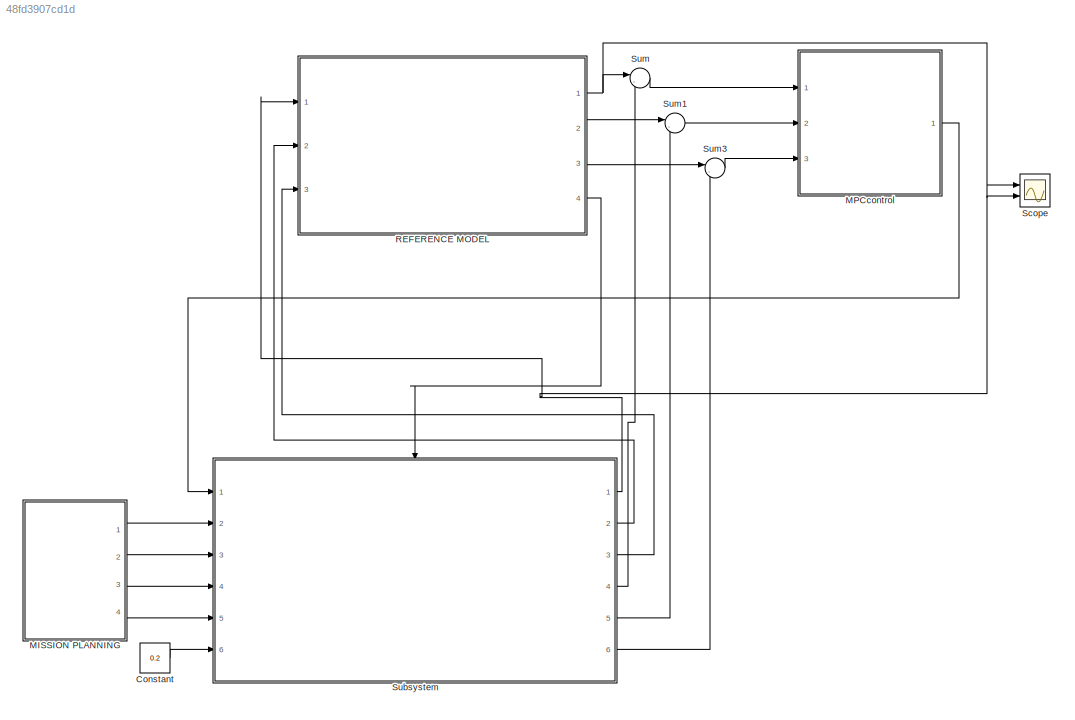
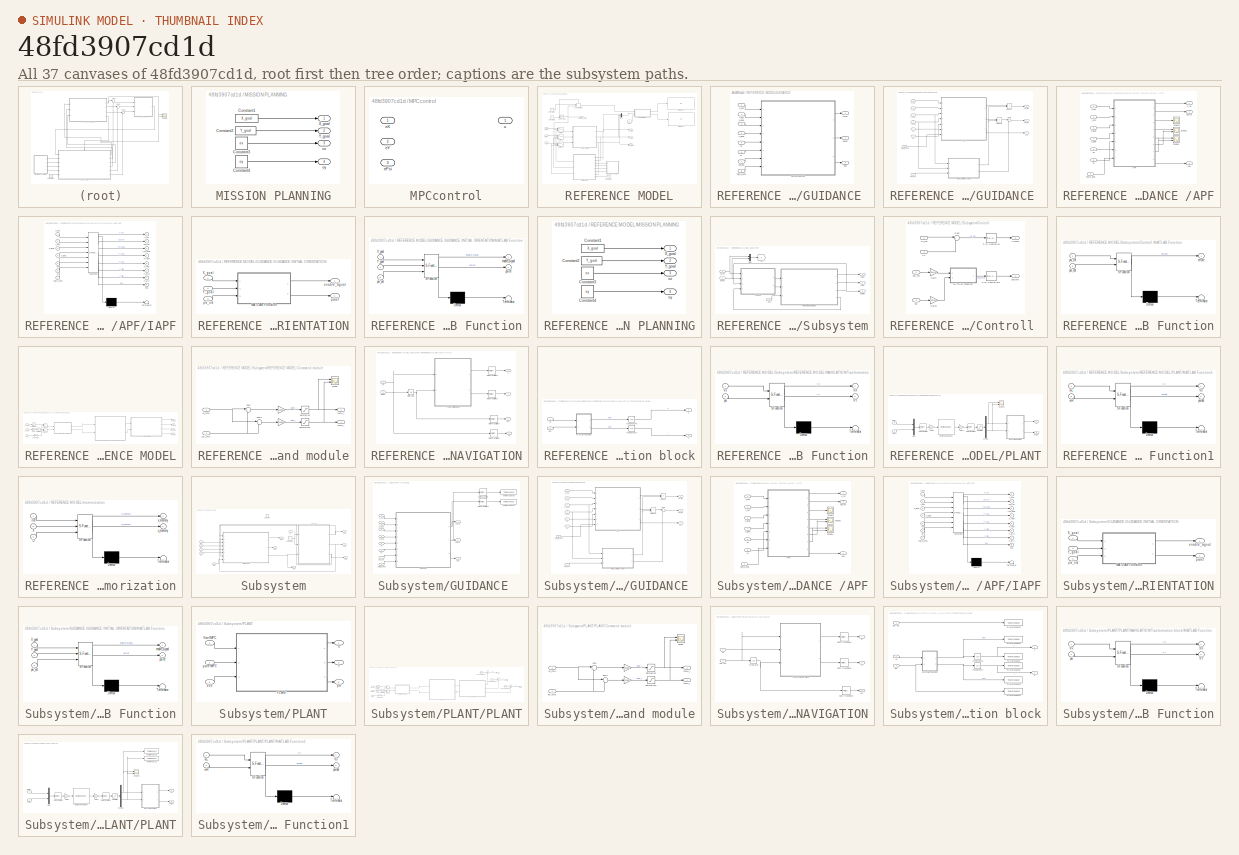
[diagram: thumbnail index - all 37 canvases of the model, root first then tree order]
MODEL slx_48fd3907cd1d
KIND model
CONFIG AbsTol = auto
CONFIG EnableMultiTasking = off
CONFIG FixedStep = 0.01
CONFIG MaxStep = auto
CONFIG MinStep = auto
CONFIG RelTol = 1e-3
CONFIG SampleTimeConstraint = Unconstrained
CONFIG SolverName = ode1
CONFIG StartTime = 0.0
CONFIG StopTime = 10
BLOCK [Constant] Constant
  Value = 0.2
BLOCK [SubSystem] MISSION PLANNING
  Ports = [0, 4]
  RequestExecContextInheritance = off
BLOCK [Constant] MISSION PLANNING/Constant1
  Value = X_goal
BLOCK [Constant] MISSION PLANNING/Constant2
  Value = Y_goal
BLOCK [Constant] MISSION PLANNING/Constant3
  Value = ox
BLOCK [Constant] MISSION PLANNING/Constant4
  Value = oy
BLOCK [Outport] MISSION PLANNING/X_goal
BLOCK [Outport] MISSION PLANNING/Y_goal
  Port = 2
BLOCK [Outport] MISSION PLANNING/ox
  Port = 3
BLOCK [Outport] MISSION PLANNING/oy
  Port = 4
BLOCK [SubSystem] MPCcontrol
  Ports = [3, 1]
  RequestExecContextInheritance = off
BLOCK [Inport] MPCcontrol/ePsi
  Port = 3
BLOCK [Inport] MPCcontrol/eX
BLOCK [Inport] MPCcontrol/eY
  Port = 2
BLOCK [Outport] MPCcontrol/u
  VectorParamsAs1DForOutWhenUnconnected = off
BLOCK [SubSystem] REFERENCE MODEL
  Ports = [3, 4]
  RequestExecContextInheritance = off
BLOCK [DiscreteIntegrator] REFERENCE MODEL/Accumulator
  ExternalReset = rising
  ICPrevOutput = DiscIntNeverNeededParam
  ICPrevScaledInput = DiscIntNeverNeededParam
  InitialConditionSetting = Auto
  IntegratorMethod = Accumulation: Forward Euler
  Ports = [2, 1, 0, 0, 1]
  SampleTime = -1
  ShowStatePort = on
BLOCK [Constant] REFERENCE MODEL/Constant
  NameLocation = top
  Value = 0.2
BLOCK [Constant] REFERENCE MODEL/Constant1
BLOCK [Constant] REFERENCE MODEL/Constant2
  Value = N
BLOCK [Display] REFERENCE MODEL/Display1
  Decimation = 1
  Ports = [1]
BLOCK [Display] REFERENCE MODEL/Display2
  Decimation = 1
  Ports = [1]
BLOCK [From] REFERENCE MODEL/From
  GotoTag = U
  TagVisibility = global
BLOCK [SubSystem] REFERENCE MODEL/GUIDANCE 
  NameLocation = top
  Ports = [8, 3]
  RequestExecContextInheritance = off
BLOCK [SubSystem] REFERENCE MODEL/GUIDANCE /GUIDANCE 
  Ports = [8, 3]
  RequestExecContextInheritance = off
BLOCK [SubSystem] REFERENCE MODEL/GUIDANCE /GUIDANCE /APF
  Ports = [7, 3]
  RequestExecContextInheritance = off
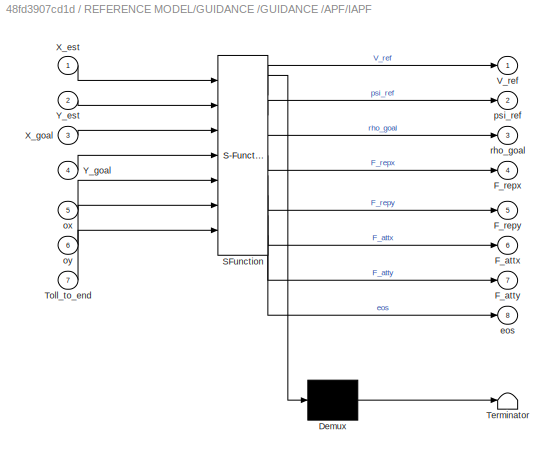
BLOCK [SubSystem] REFERENCE MODEL/GUIDANCE /GUIDANCE /APF/IAPF
  ErrorFcn = Stateflow.Translate.translate
  PermitHierarchicalResolution = ExplicitOnly
  Ports = [7, 8]
  RequestExecContextInheritance = off
  SFBlockType = MATLAB Function
  TreatAsAtomicUnit = on
BLOCK [Demux] REFERENCE MODEL/GUIDANCE /GUIDANCE /APF/IAPF/ Demux 
  Outputs = 1
  Ports = [1, 1]
BLOCK [S-Function] REFERENCE MODEL/GUIDANCE /GUIDANCE /APF/IAPF/ SFunction 
  EnableBusSupport = on
  FunctionName = sf_sfun
  PortCounts = [7 9]
  Ports = [7, 9]
  SFcnIsStateOwnerBlock = off
  SFunctionDeploymentMode = off
  Tag = Stateflow S-Function 8
BLOCK [Terminator] REFERENCE MODEL/GUIDANCE /GUIDANCE /APF/IAPF/ Terminator 
BLOCK [Outport] REFERENCE MODEL/GUIDANCE /GUIDANCE /APF/IAPF/F_attx
  Port = 6
BLOCK [Outport] REFERENCE MODEL/GUIDANCE /GUIDANCE /APF/IAPF/F_atty
  Port = 7
BLOCK [Outport] REFERENCE MODEL/GUIDANCE /GUIDANCE /APF/IAPF/F_repx
  Port = 4
BLOCK [Outport] REFERENCE MODEL/GUIDANCE /GUIDANCE /APF/IAPF/F_repy
  Port = 5
BLOCK [Inport] REFERENCE MODEL/GUIDANCE /GUIDANCE /APF/IAPF/Toll_to_end
  Port = 7
BLOCK [Outport] REFERENCE MODEL/GUIDANCE /GUIDANCE /APF/IAPF/V_ref
BLOCK [Inport] REFERENCE MODEL/GUIDANCE /GUIDANCE /APF/IAPF/X_est
BLOCK [Inport] REFERENCE MODEL/GUIDANCE /GUIDANCE /APF/IAPF/X_goal
  Port = 3
BLOCK [Inport] REFERENCE MODEL/GUIDANCE /GUIDANCE /APF/IAPF/Y_est
  Port = 2
BLOCK [Inport] REFERENCE MODEL/GUIDANCE /GUIDANCE /APF/IAPF/Y_goal
  Port = 4
BLOCK [Outport] REFERENCE MODEL/GUIDANCE /GUIDANCE /APF/IAPF/eos
  Port = 8
BLOCK [Inport] REFERENCE MODEL/GUIDANCE /GUIDANCE /APF/IAPF/ox
  Port = 5
BLOCK [Inport] REFERENCE MODEL/GUIDANCE /GUIDANCE /APF/IAPF/oy
  Port = 6
BLOCK [Outport] REFERENCE MODEL/GUIDANCE /GUIDANCE /APF/IAPF/psi_ref
  Port = 2
BLOCK [Outport] REFERENCE MODEL/GUIDANCE /GUIDANCE /APF/IAPF/rho_goal
  Port = 3
BLOCK [Scope] REFERENCE MODEL/GUIDANCE /GUIDANCE /APF/Scope1
  Floating = off
  NumInputPorts = 2
  Ports = [2]
  ScopeSpecificationString = Simulink.scopes.TimeScopeBlockCfg('CurrentConfiguration', extmgr.ConfigurationSet(extmgr.Configuration('Core','General UI',true),extmgr.Configuration('Core','Source UI',true),extmgr.Configuration('Sources','WiredSimulink',true,'DataLoggingVariableName','ScopeData1'),extmgr.Configuration('Visuals','Time Domain',true,'SerializedDisplays',{struct('MinYLimReal','-0.54866','MaxYLimReal','0.29666','YLab...<+1500ch>
BLOCK [Scope] REFERENCE MODEL/GUIDANCE /GUIDANCE /APF/Scope3
  Floating = off
  NumInputPorts = 1
  Ports = [1]
  ScopeSpecificationString = Simulink.scopes.TimeScopeBlockCfg('CurrentConfiguration', extmgr.ConfigurationSet(extmgr.Configuration('Core','General UI',true),extmgr.Configuration('Core','Source UI',true),extmgr.Configuration('Sources','WiredSimulink',true,'DataLoggingVariableName','ScopeData5'),extmgr.Configuration('Visuals','Time Domain',true,'SerializedDisplays',{struct('MinYLimReal','-1.36105','MaxYLimReal','12.72551','YLa...<+1420ch>
BLOCK [Scope] REFERENCE MODEL/GUIDANCE /GUIDANCE /APF/Scope4
  Floating = off
  NumInputPorts = 2
  Ports = [2]
  ScopeSpecificationString = Simulink.scopes.TimeScopeBlockCfg('CurrentConfiguration', extmgr.ConfigurationSet(extmgr.Configuration('Core','General UI',true),extmgr.Configuration('Core','Source UI',true),extmgr.Configuration('Sources','WiredSimulink',true,'DataLoggingVariableName','ScopeData2'),extmgr.Configuration('Visuals','Time Domain',true,'SerializedDisplays',{struct('MinYLimReal','-0.03267','MaxYLimReal','0.25688','YLab...<+1437ch>
BLOCK [Inport] REFERENCE MODEL/GUIDANCE /GUIDANCE /APF/Toll_to_end
  Port = 7
BLOCK [Outport] REFERENCE MODEL/GUIDANCE /GUIDANCE /APF/V_ref
BLOCK [Inport] REFERENCE MODEL/GUIDANCE /GUIDANCE /APF/X_est
BLOCK [Inport] REFERENCE MODEL/GUIDANCE /GUIDANCE /APF/X_goal
  Port = 3
BLOCK [Inport] REFERENCE MODEL/GUIDANCE /GUIDANCE /APF/Y_est
  Port = 2
BLOCK [Inport] REFERENCE MODEL/GUIDANCE /GUIDANCE /APF/Y_goal
  Port = 4
BLOCK [Outport] REFERENCE MODEL/GUIDANCE /GUIDANCE /APF/eos
  Port = 3
BLOCK [Inport] REFERENCE MODEL/GUIDANCE /GUIDANCE /APF/ox
  Port = 5
BLOCK [Inport] REFERENCE MODEL/GUIDANCE /GUIDANCE /APF/oy
  Port = 6
BLOCK [Outport] REFERENCE MODEL/GUIDANCE /GUIDANCE /APF/psi_ref
  Port = 2
BLOCK [SubSystem] REFERENCE MODEL/GUIDANCE /GUIDANCE /INITIAL ORIENTATION
  Ports = [3, 2]
  RequestExecContextInheritance = off
BLOCK [SubSystem] REFERENCE MODEL/GUIDANCE /GUIDANCE /INITIAL ORIENTATION/MATLAB Function
  ErrorFcn = Stateflow.Translate.translate
  PermitHierarchicalResolution = ExplicitOnly
  Ports = [3, 2]
  RequestExecContextInheritance = off
  SFBlockType = MATLAB Function
  TreatAsAtomicUnit = on
BLOCK [Demux] REFERENCE MODEL/GUIDANCE /GUIDANCE /INITIAL ORIENTATION/MATLAB Function/ Demux 
  Outputs = 1
  Ports = [1, 1]
BLOCK [S-Function] REFERENCE MODEL/GUIDANCE /GUIDANCE /INITIAL ORIENTATION/MATLAB Function/ SFunction 
  EnableBusSupport = on
  FunctionName = sf_sfun
  PortCounts = [3 3]
  Ports = [3, 3]
  SFcnIsStateOwnerBlock = off
  SFunctionDeploymentMode = off
  Tag = Stateflow S-Function 9
BLOCK [Terminator] REFERENCE MODEL/GUIDANCE /GUIDANCE /INITIAL ORIENTATION/MATLAB Function/ Terminator 
BLOCK [Inport] REFERENCE MODEL/GUIDANCE /GUIDANCE /INITIAL ORIENTATION/MATLAB Function/X_goal
BLOCK [Inport] REFERENCE MODEL/GUIDANCE /GUIDANCE /INITIAL ORIENTATION/MATLAB Function/Y_goal
  Port = 2
BLOCK [Outport] REFERENCE MODEL/GUIDANCE /GUIDANCE /INITIAL ORIENTATION/MATLAB Function/enable_signal
BLOCK [Inport] REFERENCE MODEL/GUIDANCE /GUIDANCE /INITIAL ORIENTATION/MATLAB Function/psi_est
  Port = 3
BLOCK [Outport] REFERENCE MODEL/GUIDANCE /GUIDANCE /INITIAL ORIENTATION/MATLAB Function/psiref
  Port = 2
BLOCK [Inport] REFERENCE MODEL/GUIDANCE /GUIDANCE /INITIAL ORIENTATION/X_goal
BLOCK [Inport] REFERENCE MODEL/GUIDANCE /GUIDANCE /INITIAL ORIENTATION/Y_goal
  Port = 2
BLOCK [Outport] REFERENCE MODEL/GUIDANCE /GUIDANCE /INITIAL ORIENTATION/enable_signal
BLOCK [Inport] REFERENCE MODEL/GUIDANCE /GUIDANCE /INITIAL ORIENTATION/psi_est
  Port = 3
BLOCK [Outport] REFERENCE MODEL/GUIDANCE /GUIDANCE /INITIAL ORIENTATION/psiref
  Port = 2
BLOCK [Product] REFERENCE MODEL/GUIDANCE /GUIDANCE /Product
  Ports = [2, 1]
BLOCK [Product] REFERENCE MODEL/GUIDANCE /GUIDANCE /Product1
  Ports = [2, 1]
BLOCK [Sum] REFERENCE MODEL/GUIDANCE /GUIDANCE /Sum
  Inputs = |++
  Ports = [2, 1]
BLOCK [Inport] REFERENCE MODEL/GUIDANCE /GUIDANCE /Toll_to_end
  Port = 8
BLOCK [Outport] REFERENCE MODEL/GUIDANCE /GUIDANCE /Vx_ref
BLOCK [Inport] REFERENCE MODEL/GUIDANCE /GUIDANCE /X_est
BLOCK [Inport] REFERENCE MODEL/GUIDANCE /GUIDANCE /X_goal
  Port = 3
BLOCK [Inport] REFERENCE MODEL/GUIDANCE /GUIDANCE /Y_est
  Port = 2
BLOCK [Inport] REFERENCE MODEL/GUIDANCE /GUIDANCE /Y_goal
  Port = 4
BLOCK [Outport] REFERENCE MODEL/GUIDANCE /GUIDANCE /eos
  Port = 3
BLOCK [Inport] REFERENCE MODEL/GUIDANCE /GUIDANCE /ox
  Port = 5
BLOCK [Inport] REFERENCE MODEL/GUIDANCE /GUIDANCE /oy
  Port = 6
BLOCK [Inport] REFERENCE MODEL/GUIDANCE /GUIDANCE /psi_est
  Port = 7
BLOCK [Outport] REFERENCE MODEL/GUIDANCE /GUIDANCE /psi_ref
  Port = 2
BLOCK [Inport] REFERENCE MODEL/GUIDANCE /Toll_to_end
  Port = 8
BLOCK [Outport] REFERENCE MODEL/GUIDANCE /Vxref
BLOCK [Inport] REFERENCE MODEL/GUIDANCE /X_est
BLOCK [Inport] REFERENCE MODEL/GUIDANCE /X_goal
  Port = 3
BLOCK [Inport] REFERENCE MODEL/GUIDANCE /Y_est
  Port = 2
BLOCK [Inport] REFERENCE MODEL/GUIDANCE /Y_goal
  Port = 4
BLOCK [Outport] REFERENCE MODEL/GUIDANCE /eos
  Port = 3
  VectorParamsAs1DForOutWhenUnconnected = off
BLOCK [Inport] REFERENCE MODEL/GUIDANCE /ox
  Port = 5
BLOCK [Inport] REFERENCE MODEL/GUIDANCE /oy
  Port = 6
BLOCK [Inport] REFERENCE MODEL/GUIDANCE /psi_est
  Port = 7
BLOCK [Outport] REFERENCE MODEL/GUIDANCE /psiref
  Port = 2
BLOCK [RelationalOperator] REFERENCE MODEL/Less Than
  InputSameDT = off
  OutDataTypeStr = boolean
  Ports = [2, 1]
  RndMeth = Simplest
BLOCK [SubSystem] REFERENCE MODEL/MISSION PLANNING
  NameLocation = top
  Ports = [0, 4]
  RequestExecContextInheritance = off
BLOCK [Constant] REFERENCE MODEL/MISSION PLANNING/Constant1
  Value = X_goal
BLOCK [Constant] REFERENCE MODEL/MISSION PLANNING/Constant2
  Value = Y_goal
BLOCK [Constant] REFERENCE MODEL/MISSION PLANNING/Constant3
  Value = ox
BLOCK [Constant] REFERENCE MODEL/MISSION PLANNING/Constant4
  Value = oy
BLOCK [Outport] REFERENCE MODEL/MISSION PLANNING/X_goal
BLOCK [Outport] REFERENCE MODEL/MISSION PLANNING/Y_goal
  Port = 2
BLOCK [Outport] REFERENCE MODEL/MISSION PLANNING/ox
  Port = 3
BLOCK [Outport] REFERENCE MODEL/MISSION PLANNING/oy
  Port = 4
BLOCK [Mux] REFERENCE MODEL/Mux
  DisplayOption = bar
  Inputs = 3
  Ports = [3, 1]
BLOCK [SubSystem] REFERENCE MODEL/Subsystem
  Ports = [3, 3]
  RequestExecContextInheritance = off
BLOCK [SubSystem] REFERENCE MODEL/Subsystem/Controll 
  Ports = [4, 2]
  RequestExecContextInheritance = off
BLOCK [Gain] REFERENCE MODEL/Subsystem/Controll /Gain
  Gain = 180/pi
BLOCK [Gain] REFERENCE MODEL/Subsystem/Controll /Gain2
  Gain = 180/pi
BLOCK [SubSystem] REFERENCE MODEL/Subsystem/Controll /MATLAB Function
  ErrorFcn = Stateflow.Translate.translate
  PermitHierarchicalResolution = ExplicitOnly
  Ports = [2, 1]
  RequestExecContextInheritance = off
  SFBlockType = MATLAB Function
  TreatAsAtomicUnit = on
BLOCK [Demux] REFERENCE MODEL/Subsystem/Controll /MATLAB Function/ Demux 
  Outputs = 1
  Ports = [1, 1]
BLOCK [S-Function] REFERENCE MODEL/Subsystem/Controll /MATLAB Function/ SFunction 
  EnableBusSupport = on
  FunctionName = sf_sfun
  PortCounts = [2 2]
  Ports = [2, 2]
  SFcnIsStateOwnerBlock = off
  SFunctionDeploymentMode = off
  Tag = Stateflow S-Function 5
BLOCK [Terminator] REFERENCE MODEL/Subsystem/Controll /MATLAB Function/ Terminator 
BLOCK [Outport] REFERENCE MODEL/Subsystem/Controll /MATLAB Function/errore
BLOCK [Inport] REFERENCE MODEL/Subsystem/Controll /MATLAB Function/psi_est
  Port = 2
BLOCK [Inport] REFERENCE MODEL/Subsystem/Controll /MATLAB Function/psi_ref
BLOCK [Reference] REFERENCE MODEL/Subsystem/Controll /PID Controller  REF=pid_lib/PID Controller
  Ports = [1, 1]
  SourceBlock = pid_lib/PID Controller
  SourceProductBaseCode = SL
  SourceType = PID 1dof
BLOCK [Reference] REFERENCE MODEL/Subsystem/Controll /PID Controller1  REF=pid_lib/PID Controller
  Ports = [1, 1]
  SourceBlock = pid_lib/PID Controller
  SourceProductBaseCode = SL
  SourceType = PID 1dof
BLOCK [Sum] REFERENCE MODEL/Subsystem/Controll /Sum
  Inputs = |+-
  Ports = [2, 1]
BLOCK [Inport] REFERENCE MODEL/Subsystem/Controll /Vx
  Port = 4
BLOCK [Inport] REFERENCE MODEL/Subsystem/Controll /Vx_ref
BLOCK [Outport] REFERENCE MODEL/Subsystem/Controll /Vxcmd
BLOCK [Inport] REFERENCE MODEL/Subsystem/Controll /psi
  Port = 3
BLOCK [Inport] REFERENCE MODEL/Subsystem/Controll /psi_ref
  Port = 2
BLOCK [Outport] REFERENCE MODEL/Subsystem/Controll /psicmd
  Port = 2
BLOCK [Mux] REFERENCE MODEL/Subsystem/Mux
  DisplayOption = bar
  Inputs = 2
  Ports = [2, 1]
BLOCK [SubSystem] REFERENCE MODEL/Subsystem/REFERENCE MODEL
  Ports = [3, 4]
  RequestExecContextInheritance = off
BLOCK [Gain] REFERENCE MODEL/Subsystem/REFERENCE MODEL/1//180
  Gain = 1/180
BLOCK [SubSystem] REFERENCE MODEL/Subsystem/REFERENCE MODEL/Command module
  Ports = [2, 2]
  RequestExecContextInheritance = off
BLOCK [Gain] REFERENCE MODEL/Subsystem/REFERENCE MODEL/Command module/ 
  Gain = 20000
BLOCK [Gain] REFERENCE MODEL/Subsystem/REFERENCE MODEL/Command module/   
  Gain = 20000
BLOCK [Outport] REFERENCE MODEL/Subsystem/REFERENCE MODEL/Command module/PWM_l
BLOCK [Outport] REFERENCE MODEL/Subsystem/REFERENCE MODEL/Command module/PWM_r
  Port = 2
BLOCK [Saturate] REFERENCE MODEL/Subsystem/REFERENCE MODEL/Command module/Saturation
  LowerLimit = -20000
  UpperLimit = 20000
BLOCK [Saturate] REFERENCE MODEL/Subsystem/REFERENCE MODEL/Command module/Saturation1
  LowerLimit = -20000
  UpperLimit = 20000
BLOCK [Scope] REFERENCE MODEL/Subsystem/REFERENCE MODEL/Command module/Scope
  Floating = off
  NumInputPorts = 2
  Ports = [2]
  ScopeSpecificationString = Simulink.scopes.TimeScopeBlockCfg('CurrentConfiguration', extmgr.ConfigurationSet(extmgr.Configuration('Core','General UI',true),extmgr.Configuration('Core','Source UI',true),extmgr.Configuration('Sources','WiredSimulink',true,'DataLoggingVariableName','ScopeData4'),extmgr.Configuration('Visuals','Time Domain',true,'SerializedDisplays',{struct('MinYLimReal','-4186.09821','MaxYLimReal','17004.23029...<+1525ch>
BLOCK [Sum] REFERENCE MODEL/Subsystem/REFERENCE MODEL/Command module/Sum
  Inputs = |++
  Ports = [2, 1]
BLOCK [Sum] REFERENCE MODEL/Subsystem/REFERENCE MODEL/Command module/Sum1
  Inputs = |+-
  Ports = [2, 1]
BLOCK [Inport] REFERENCE MODEL/Subsystem/REFERENCE MODEL/Command module/Vx_cmd
BLOCK [Inport] REFERENCE MODEL/Subsystem/REFERENCE MODEL/Command module/psi_cmd
  Port = 2
BLOCK [Reference] REFERENCE MODEL/Subsystem/REFERENCE MODEL/IsNonZero  REF=simulink/Logic and Bit
Operations/Compare
To Zero
  Ports = [1, 1]
  SourceBlock = simulink/Logic and Bit\nOperations/Compare\nTo Zero
  SourceProductBaseCode = SL
  SourceType = Compare To Zero
BLOCK [SubSystem] REFERENCE MODEL/Subsystem/REFERENCE MODEL/NAVIGATION
  NameLocation = top
  Ports = [2, 4]
  RequestExecContextInheritance = off
BLOCK [Outport] REFERENCE MODEL/Subsystem/REFERENCE MODEL/NAVIGATION/ Vx
  Port = 4
BLOCK [Integrator] REFERENCE MODEL/Subsystem/REFERENCE MODEL/NAVIGATION/Integrator
  Ports = [1, 1]
  WrapState = on
BLOCK [RateTransition] REFERENCE MODEL/Subsystem/REFERENCE MODEL/NAVIGATION/Rate Transition2
  NameLocation = top
  OutPortSampleTime = 0.1
BLOCK [RateTransition] REFERENCE MODEL/Subsystem/REFERENCE MODEL/NAVIGATION/Rate Transition3
  NameLocation = top
  OutPortSampleTime = 0.1
BLOCK [RateTransition] REFERENCE MODEL/Subsystem/REFERENCE MODEL/NAVIGATION/Rate Transition4
  NameLocation = top
  OutPortSampleTime = 0.1
BLOCK [RateTransition] REFERENCE MODEL/Subsystem/REFERENCE MODEL/NAVIGATION/Rate Transition5
  NameLocation = top
  OutPortSampleTime = 0.1
BLOCK [SubSystem] REFERENCE MODEL/Subsystem/REFERENCE MODEL/NAVIGATION/Trasformation block
  Ports = [2, 2]
  RequestExecContextInheritance = off
BLOCK [Integrator] REFERENCE MODEL/Subsystem/REFERENCE MODEL/NAVIGATION/Trasformation block/Integrator5
  InitialCondition = X_0
  Ports = [1, 1]
BLOCK [Integrator] REFERENCE MODEL/Subsystem/REFERENCE MODEL/NAVIGATION/Trasformation block/Integrator7
  InitialCondition = Y_0
  Ports = [1, 1]
BLOCK [SubSystem] REFERENCE MODEL/Subsystem/REFERENCE MODEL/NAVIGATION/Trasformation block/MATLAB Function
  ErrorFcn = Stateflow.Translate.translate
  PermitHierarchicalResolution = ExplicitOnly
  Ports = [2, 2]
  RequestExecContextInheritance = off
  SFBlockType = MATLAB Function
  TreatAsAtomicUnit = on
BLOCK [Demux] REFERENCE MODEL/Subsystem/REFERENCE MODEL/NAVIGATION/Trasformation block/MATLAB Function/ Demux 
  Outputs = 1
  Ports = [1, 1]
BLOCK [S-Function] REFERENCE MODEL/Subsystem/REFERENCE MODEL/NAVIGATION/Trasformation block/MATLAB Function/ SFunction 
  EnableBusSupport = on
  FunctionName = sf_sfun
  PortCounts = [2 3]
  Ports = [2, 3]
  SFcnIsStateOwnerBlock = off
  SFunctionDeploymentMode = off
  Tag = Stateflow S-Function 4
BLOCK [Terminator] REFERENCE MODEL/Subsystem/REFERENCE MODEL/NAVIGATION/Trasformation block/MATLAB Function/ Terminator 
BLOCK [Outport] REFERENCE MODEL/Subsystem/REFERENCE MODEL/NAVIGATION/Trasformation block/MATLAB Function/VX
BLOCK [Outport] REFERENCE MODEL/Subsystem/REFERENCE MODEL/NAVIGATION/Trasformation block/MATLAB Function/VY
  Port = 2
BLOCK [Inport] REFERENCE MODEL/Subsystem/REFERENCE MODEL/NAVIGATION/Trasformation block/MATLAB Function/Vx
BLOCK [Inport] REFERENCE MODEL/Subsystem/REFERENCE MODEL/NAVIGATION/Trasformation block/MATLAB Function/psi
  Port = 2
BLOCK [Inport] REFERENCE MODEL/Subsystem/REFERENCE MODEL/NAVIGATION/Trasformation block/Vx
BLOCK [Outport] REFERENCE MODEL/Subsystem/REFERENCE MODEL/NAVIGATION/Trasformation block/X
BLOCK [Outport] REFERENCE MODEL/Subsystem/REFERENCE MODEL/NAVIGATION/Trasformation block/Y
  Port = 2
BLOCK [Inport] REFERENCE MODEL/Subsystem/REFERENCE MODEL/NAVIGATION/Trasformation block/psi
  Port = 2
BLOCK [Inport] REFERENCE MODEL/Subsystem/REFERENCE MODEL/NAVIGATION/Vx
BLOCK [Outport] REFERENCE MODEL/Subsystem/REFERENCE MODEL/NAVIGATION/X
BLOCK [Outport] REFERENCE MODEL/Subsystem/REFERENCE MODEL/NAVIGATION/Y
  Port = 2
BLOCK [Inport] REFERENCE MODEL/Subsystem/REFERENCE MODEL/NAVIGATION/dot psi
  Port = 2
BLOCK [Outport] REFERENCE MODEL/Subsystem/REFERENCE MODEL/NAVIGATION/psi
  Port = 3
BLOCK [SubSystem] REFERENCE MODEL/Subsystem/REFERENCE MODEL/PLANT
  Ports = [2, 2]
  RequestExecContextInheritance = off
BLOCK [Demux] REFERENCE MODEL/Subsystem/REFERENCE MODEL/PLANT/Demux
  Outputs = 2
  Ports = [1, 2]
BLOCK [Gain] REFERENCE MODEL/Subsystem/REFERENCE MODEL/PLANT/Gain2
  Gain = 1/20000
BLOCK [Gain] REFERENCE MODEL/Subsystem/REFERENCE MODEL/PLANT/Gain4
  Gain = 20
BLOCK [SubSystem] REFERENCE MODEL/Subsystem/REFERENCE MODEL/PLANT/MATLAB Function1
  ErrorFcn = Stateflow.Translate.translate
  PermitHierarchicalResolution = ExplicitOnly
  Ports = [2, 2]
  RequestExecContextInheritance = off
  SFBlockType = MATLAB Function
  TreatAsAtomicUnit = on
BLOCK [Demux] REFERENCE MODEL/Subsystem/REFERENCE MODEL/PLANT/MATLAB Function1/ Demux 
  Outputs = 1
  Ports = [1, 1]
BLOCK [S-Function] REFERENCE MODEL/Subsystem/REFERENCE MODEL/PLANT/MATLAB Function1/ SFunction 
  EnableBusSupport = on
  FunctionName = sf_sfun
  PortCounts = [2 3]
  Ports = [2, 3]
  SFcnIsStateOwnerBlock = off
  SFunctionDeploymentMode = off
  Tag = Stateflow S-Function 7
BLOCK [Terminator] REFERENCE MODEL/Subsystem/REFERENCE MODEL/PLANT/MATLAB Function1/ Terminator 
BLOCK [Outport] REFERENCE MODEL/Subsystem/REFERENCE MODEL/PLANT/MATLAB Function1/Vx
BLOCK [Outport] REFERENCE MODEL/Subsystem/REFERENCE MODEL/PLANT/MATLAB Function1/psidot
  Port = 2
BLOCK [Inport] REFERENCE MODEL/Subsystem/REFERENCE MODEL/PLANT/MATLAB Function1/wL
BLOCK [Inport] REFERENCE MODEL/Subsystem/REFERENCE MODEL/PLANT/MATLAB Function1/wR
  Port = 2
BLOCK [Mux] REFERENCE MODEL/Subsystem/REFERENCE MODEL/PLANT/Mux
  DisplayOption = bar
  Inputs = 2
  Ports = [2, 1]
BLOCK [Reference] REFERENCE MODEL/Subsystem/REFERENCE MODEL/PLANT/Nonlinear ARX Model  REF=slident/Models/Nonlinear ARX Model  (lib defined in mdl_f7d4911ca73a)
  Ports = [1, 1]
  SourceBlock = slident/Models/Nonlinear ARX Model
  SourceProductBaseCode = ID
  SourceType = Nonlinear ARX Model
BLOCK [Inport] REFERENCE MODEL/Subsystem/REFERENCE MODEL/PLANT/PWM_l
BLOCK [Inport] REFERENCE MODEL/Subsystem/REFERENCE MODEL/PLANT/PWM_r
  Port = 2
BLOCK [RateTransition] REFERENCE MODEL/Subsystem/REFERENCE MODEL/PLANT/Rate Transition
BLOCK [RateTransition] REFERENCE MODEL/Subsystem/REFERENCE MODEL/PLANT/Rate Transition1
BLOCK [Saturate] REFERENCE MODEL/Subsystem/REFERENCE MODEL/PLANT/Saturation
  LowerLimit = -20
  UpperLimit = 20
BLOCK [Scope] REFERENCE MODEL/Subsystem/REFERENCE MODEL/PLANT/Scope2
  Floating = off
  NumInputPorts = 2
  Ports = [2]
  ScopeSpecificationString = Simulink.scopes.TimeScopeBlockCfg('CurrentConfiguration', extmgr.ConfigurationSet(extmgr.Configuration('Core','General UI',true),extmgr.Configuration('Core','Source UI',true),extmgr.Configuration('Sources','WiredSimulink',true,'DataLoggingVariableName','ScopeData1'),extmgr.Configuration('Visuals','Time Domain',true,'SerializedDisplays',{struct('MinYLimReal','-12.22846','MaxYLimReal','21.09184','YL...<+1479ch>
BLOCK [Outport] REFERENCE MODEL/Subsystem/REFERENCE MODEL/PLANT/Vx
BLOCK [Outport] REFERENCE MODEL/Subsystem/REFERENCE MODEL/PLANT/psidot
  Port = 2
BLOCK [Product] REFERENCE MODEL/Subsystem/REFERENCE MODEL/Product
  Ports = [2, 1]
BLOCK [Product] REFERENCE MODEL/Subsystem/REFERENCE MODEL/Product1
  Ports = [2, 1]
BLOCK [Saturate] REFERENCE MODEL/Subsystem/REFERENCE MODEL/Saturation
BLOCK [Saturate] REFERENCE MODEL/Subsystem/REFERENCE MODEL/Saturation1
  LowerLimit = -1
  UpperLimit = 1
BLOCK [Outport] REFERENCE MODEL/Subsystem/REFERENCE MODEL/Vx_MPC
  Port = 4
  VectorParamsAs1DForOutWhenUnconnected = off
BLOCK [Inport] REFERENCE MODEL/Subsystem/REFERENCE MODEL/Vxcmd
BLOCK [Outport] REFERENCE MODEL/Subsystem/REFERENCE MODEL/X_MPC
  VectorParamsAs1DForOutWhenUnconnected = off
BLOCK [Outport] REFERENCE MODEL/Subsystem/REFERENCE MODEL/Y_MPC
  Port = 2
  VectorParamsAs1DForOutWhenUnconnected = off
BLOCK [Inport] REFERENCE MODEL/Subsystem/REFERENCE MODEL/eos
  Port = 3
BLOCK [Outport] REFERENCE MODEL/Subsystem/REFERENCE MODEL/psi_MPC
  Port = 3
  VectorParamsAs1DForOutWhenUnconnected = off
BLOCK [Inport] REFERENCE MODEL/Subsystem/REFERENCE MODEL/psicmd
  Port = 2
BLOCK [Goto] REFERENCE MODEL/Subsystem/U
  GotoTag = U
  TagVisibility = global
BLOCK [Inport] REFERENCE MODEL/Subsystem/Vxref
BLOCK [Outport] REFERENCE MODEL/Subsystem/Xmpc
  VectorParamsAs1DForOutWhenUnconnected = off
BLOCK [Outport] REFERENCE MODEL/Subsystem/Ympc
  Port = 2
  VectorParamsAs1DForOutWhenUnconnected = off
BLOCK [Inport] REFERENCE MODEL/Subsystem/eos
  Port = 3
BLOCK [Outport] REFERENCE MODEL/Subsystem/psimpc
  Port = 3
  VectorParamsAs1DForOutWhenUnconnected = off
BLOCK [Inport] REFERENCE MODEL/Subsystem/psiref
  Port = 2
BLOCK [Switch] REFERENCE MODEL/Switch
  Criteria = u2 > Threshold
  InputSameDT = off
  SaturateOnIntegerOverflow = off
BLOCK [Switch] REFERENCE MODEL/Switch1
  Criteria = u2 > Threshold
  InputSameDT = off
  SaturateOnIntegerOverflow = off
BLOCK [Switch] REFERENCE MODEL/Switch2
  Criteria = u2 > Threshold
  InputSameDT = off
  SaturateOnIntegerOverflow = off
BLOCK [Inport] REFERENCE MODEL/Vxref
BLOCK [Outport] REFERENCE MODEL/enable_sign
  Port = 4
  VectorParamsAs1DForOutWhenUnconnected = off
BLOCK [Inport] REFERENCE MODEL/eos
  Port = 3
BLOCK [SubSystem] REFERENCE MODEL/memorization
  ErrorFcn = Stateflow.Translate.translate
  PermitHierarchicalResolution = ExplicitOnly
  Ports = [3, 2]
  RequestExecContextInheritance = off
  SFBlockType = MATLAB Function
  TreatAsAtomicUnit = on
BLOCK [Demux] REFERENCE MODEL/memorization/ Demux 
  Outputs = 1
  Ports = [1, 1]
BLOCK [S-Function] REFERENCE MODEL/memorization/ SFunction 
  EnableBusSupport = on
  FunctionName = sf_sfun
  PortCounts = [3 3]
  Ports = [3, 3]
  SFcnIsStateOwnerBlock = off
  SFunctionDeploymentMode = off
  Tag = Stateflow S-Function 10
BLOCK [Terminator] REFERENCE MODEL/memorization/ Terminator 
BLOCK [Inport] REFERENCE MODEL/memorization/U
  Port = 3
BLOCK [Inport] REFERENCE MODEL/memorization/X
  Port = 2
BLOCK [Inport] REFERENCE MODEL/memorization/iter
BLOCK [Outport] REFERENCE MODEL/memorization/u_memory
  Port = 2
BLOCK [Outport] REFERENCE MODEL/memorization/x_memory
BLOCK [Outport] REFERENCE MODEL/psi_MPC
  Port = 3
  VectorParamsAs1DForOutWhenUnconnected = off
BLOCK [Inport] REFERENCE MODEL/psiref
  Port = 2
BLOCK [Outport] REFERENCE MODEL/x_MPC
  VectorParamsAs1DForOutWhenUnconnected = off
BLOCK [Outport] REFERENCE MODEL/y_MPC
  Port = 2
  VectorParamsAs1DForOutWhenUnconnected = off
BLOCK [Scope] Scope
  Floating = off
  NumInputPorts = 2
  Ports = [2]
  ScopeSpecificationString = Simulink.scopes.TimeScopeBlockCfg('CurrentConfiguration', extmgr.ConfigurationSet(extmgr.Configuration('Core','General UI',true),extmgr.Configuration('Core','Source UI',true),extmgr.Configuration('Sources','WiredSimulink',true,'DataLoggingVariableName','ScopeData1'),extmgr.Configuration('Visuals','Time Domain',true,'SerializedDisplays',{struct('MinYLimReal','-0.10805','MaxYLimReal','0.51114','YLab...<+1461ch>
BLOCK [SubSystem] Subsystem
  Ports = [6, 6, 1]
  RequestExecContextInheritance = off
BLOCK [Constant] Subsystem/Constant
BLOCK [EnablePort] Subsystem/Enable
  Ports = []
BLOCK [SubSystem] Subsystem/GUIDANCE 
  Ports = [8, 3]
  RequestExecContextInheritance = off
BLOCK [SubSystem] Subsystem/GUIDANCE /GUIDANCE 
  Ports = [8, 3]
  RequestExecContextInheritance = off
BLOCK [SubSystem] Subsystem/GUIDANCE /GUIDANCE /APF
  Ports = [7, 3]
  RequestExecContextInheritance = off
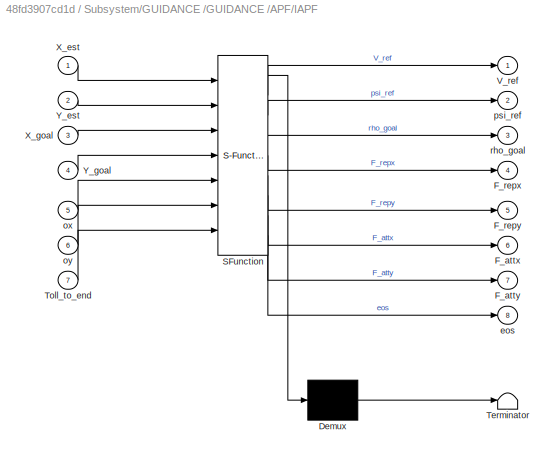
BLOCK [SubSystem] Subsystem/GUIDANCE /GUIDANCE /APF/IAPF
  ErrorFcn = Stateflow.Translate.translate
  PermitHierarchicalResolution = ExplicitOnly
  Ports = [7, 8]
  RequestExecContextInheritance = off
  SFBlockType = MATLAB Function
  TreatAsAtomicUnit = on
BLOCK [Demux] Subsystem/GUIDANCE /GUIDANCE /APF/IAPF/ Demux 
  Outputs = 1
  Ports = [1, 1]
BLOCK [S-Function] Subsystem/GUIDANCE /GUIDANCE /APF/IAPF/ SFunction 
  EnableBusSupport = on
  FunctionName = sf_sfun
  PortCounts = [7 9]
  Ports = [7, 9]
  SFcnIsStateOwnerBlock = off
  SFunctionDeploymentMode = off
  Tag = Stateflow S-Function 6
BLOCK [Terminator] Subsystem/GUIDANCE /GUIDANCE /APF/IAPF/ Terminator 
BLOCK [Outport] Subsystem/GUIDANCE /GUIDANCE /APF/IAPF/F_attx
  Port = 6
BLOCK [Outport] Subsystem/GUIDANCE /GUIDANCE /APF/IAPF/F_atty
  Port = 7
BLOCK [Outport] Subsystem/GUIDANCE /GUIDANCE /APF/IAPF/F_repx
  Port = 4
BLOCK [Outport] Subsystem/GUIDANCE /GUIDANCE /APF/IAPF/F_repy
  Port = 5
BLOCK [Inport] Subsystem/GUIDANCE /GUIDANCE /APF/IAPF/Toll_to_end
  Port = 7
BLOCK [Outport] Subsystem/GUIDANCE /GUIDANCE /APF/IAPF/V_ref
BLOCK [Inport] Subsystem/GUIDANCE /GUIDANCE /APF/IAPF/X_est
BLOCK [Inport] Subsystem/GUIDANCE /GUIDANCE /APF/IAPF/X_goal
  Port = 3
BLOCK [Inport] Subsystem/GUIDANCE /GUIDANCE /APF/IAPF/Y_est
  Port = 2
BLOCK [Inport] Subsystem/GUIDANCE /GUIDANCE /APF/IAPF/Y_goal
  Port = 4
BLOCK [Outport] Subsystem/GUIDANCE /GUIDANCE /APF/IAPF/eos
  Port = 8
BLOCK [Inport] Subsystem/GUIDANCE /GUIDANCE /APF/IAPF/ox
  Port = 5
BLOCK [Inport] Subsystem/GUIDANCE /GUIDANCE /APF/IAPF/oy
  Port = 6
BLOCK [Outport] Subsystem/GUIDANCE /GUIDANCE /APF/IAPF/psi_ref
  Port = 2
BLOCK [Outport] Subsystem/GUIDANCE /GUIDANCE /APF/IAPF/rho_goal
  Port = 3
BLOCK [Scope] Subsystem/GUIDANCE /GUIDANCE /APF/Scope1
  Floating = off
  NumInputPorts = 2
  Ports = [2]
  ScopeSpecificationString = Simulink.scopes.TimeScopeBlockCfg('CurrentConfiguration', extmgr.ConfigurationSet(extmgr.Configuration('Core','General UI',true),extmgr.Configuration('Core','Source UI',true),extmgr.Configuration('Sources','WiredSimulink',true,'DataLoggingVariableName','ScopeData1'),extmgr.Configuration('Visuals','Time Domain',true,'SerializedDisplays',{struct('MinYLimReal','-0.54866','MaxYLimReal','0.29666','YLab...<+1500ch>
BLOCK [Scope] Subsystem/GUIDANCE /GUIDANCE /APF/Scope3
  Floating = off
  NumInputPorts = 1
  Ports = [1]
  ScopeSpecificationString = Simulink.scopes.TimeScopeBlockCfg('CurrentConfiguration', extmgr.ConfigurationSet(extmgr.Configuration('Core','General UI',true),extmgr.Configuration('Core','Source UI',true),extmgr.Configuration('Sources','WiredSimulink',true,'DataLoggingVariableName','ScopeData5'),extmgr.Configuration('Visuals','Time Domain',true,'SerializedDisplays',{struct('MinYLimReal','-1.36105','MaxYLimReal','12.72551','YLa...<+1420ch>
BLOCK [Scope] Subsystem/GUIDANCE /GUIDANCE /APF/Scope4
  Floating = off
  NumInputPorts = 2
  Ports = [2]
  ScopeSpecificationString = Simulink.scopes.TimeScopeBlockCfg('CurrentConfiguration', extmgr.ConfigurationSet(extmgr.Configuration('Core','General UI',true),extmgr.Configuration('Core','Source UI',true),extmgr.Configuration('Sources','WiredSimulink',true,'DataLoggingVariableName','ScopeData2'),extmgr.Configuration('Visuals','Time Domain',true,'SerializedDisplays',{struct('MinYLimReal','-0.03267','MaxYLimReal','0.25688','YLab...<+1437ch>
BLOCK [Inport] Subsystem/GUIDANCE /GUIDANCE /APF/Toll_to_end
  Port = 7
BLOCK [Outport] Subsystem/GUIDANCE /GUIDANCE /APF/V_ref
BLOCK [Inport] Subsystem/GUIDANCE /GUIDANCE /APF/X_est
BLOCK [Inport] Subsystem/GUIDANCE /GUIDANCE /APF/X_goal
  Port = 3
BLOCK [Inport] Subsystem/GUIDANCE /GUIDANCE /APF/Y_est
  Port = 2
BLOCK [Inport] Subsystem/GUIDANCE /GUIDANCE /APF/Y_goal
  Port = 4
BLOCK [Outport] Subsystem/GUIDANCE /GUIDANCE /APF/eos
  Port = 3
BLOCK [Inport] Subsystem/GUIDANCE /GUIDANCE /APF/ox
  Port = 5
BLOCK [Inport] Subsystem/GUIDANCE /GUIDANCE /APF/oy
  Port = 6
BLOCK [Outport] Subsystem/GUIDANCE /GUIDANCE /APF/psi_ref
  Port = 2
BLOCK [SubSystem] Subsystem/GUIDANCE /GUIDANCE /INITIAL ORIENTATION
  Ports = [3, 2]
  RequestExecContextInheritance = off
BLOCK [SubSystem] Subsystem/GUIDANCE /GUIDANCE /INITIAL ORIENTATION/MATLAB Function
  ErrorFcn = Stateflow.Translate.translate
  PermitHierarchicalResolution = ExplicitOnly
  Ports = [3, 2]
  RequestExecContextInheritance = off
  SFBlockType = MATLAB Function
  TreatAsAtomicUnit = on
BLOCK [Demux] Subsystem/GUIDANCE /GUIDANCE /INITIAL ORIENTATION/MATLAB Function/ Demux 
  Outputs = 1
  Ports = [1, 1]
BLOCK [S-Function] Subsystem/GUIDANCE /GUIDANCE /INITIAL ORIENTATION/MATLAB Function/ SFunction 
  EnableBusSupport = on
  FunctionName = sf_sfun
  PortCounts = [3 3]
  Ports = [3, 3]
  SFcnIsStateOwnerBlock = off
  SFunctionDeploymentMode = off
  Tag = Stateflow S-Function 1
BLOCK [Terminator] Subsystem/GUIDANCE /GUIDANCE /INITIAL ORIENTATION/MATLAB Function/ Terminator 
BLOCK [Inport] Subsystem/GUIDANCE /GUIDANCE /INITIAL ORIENTATION/MATLAB Function/X_goal
BLOCK [Inport] Subsystem/GUIDANCE /GUIDANCE /INITIAL ORIENTATION/MATLAB Function/Y_goal
  Port = 2
BLOCK [Outport] Subsystem/GUIDANCE /GUIDANCE /INITIAL ORIENTATION/MATLAB Function/enable_signal
BLOCK [Inport] Subsystem/GUIDANCE /GUIDANCE /INITIAL ORIENTATION/MATLAB Function/psi_est
  Port = 3
BLOCK [Outport] Subsystem/GUIDANCE /GUIDANCE /INITIAL ORIENTATION/MATLAB Function/psiref
  Port = 2
BLOCK [Inport] Subsystem/GUIDANCE /GUIDANCE /INITIAL ORIENTATION/X_goal
BLOCK [Inport] Subsystem/GUIDANCE /GUIDANCE /INITIAL ORIENTATION/Y_goal
  Port = 2
BLOCK [Outport] Subsystem/GUIDANCE /GUIDANCE /INITIAL ORIENTATION/enable_signal
BLOCK [Inport] Subsystem/GUIDANCE /GUIDANCE /INITIAL ORIENTATION/psi_est
  Port = 3
BLOCK [Outport] Subsystem/GUIDANCE /GUIDANCE /INITIAL ORIENTATION/psiref
  Port = 2
BLOCK [Product] Subsystem/GUIDANCE /GUIDANCE /Product
  Ports = [2, 1]
BLOCK [Product] Subsystem/GUIDANCE /GUIDANCE /Product1
  Ports = [2, 1]
BLOCK [Sum] Subsystem/GUIDANCE /GUIDANCE /Sum
  Inputs = |++
  Ports = [2, 1]
BLOCK [Inport] Subsystem/GUIDANCE /GUIDANCE /Toll_to_end
  Port = 8
BLOCK [Outport] Subsystem/GUIDANCE /GUIDANCE /Vx_ref
BLOCK [Inport] Subsystem/GUIDANCE /GUIDANCE /X_est
BLOCK [Inport] Subsystem/GUIDANCE /GUIDANCE /X_goal
  Port = 3
BLOCK [Inport] Subsystem/GUIDANCE /GUIDANCE /Y_est
  Port = 2
BLOCK [Inport] Subsystem/GUIDANCE /GUIDANCE /Y_goal
  Port = 4
BLOCK [Outport] Subsystem/GUIDANCE /GUIDANCE /eos
  Port = 3
BLOCK [Inport] Subsystem/GUIDANCE /GUIDANCE /ox
  Port = 5
BLOCK [Inport] Subsystem/GUIDANCE /GUIDANCE /oy
  Port = 6
BLOCK [Inport] Subsystem/GUIDANCE /GUIDANCE /psi_est
  Port = 7
BLOCK [Outport] Subsystem/GUIDANCE /GUIDANCE /psi_ref
  Port = 2
BLOCK [RateTransition] Subsystem/GUIDANCE /Rate Transition
BLOCK [RateTransition] Subsystem/GUIDANCE /Rate Transition1
BLOCK [ToWorkspace] Subsystem/GUIDANCE /To Workspace1
  FixptAsFi = on
  MaxDataPoints = inf
  Ports = [1]
  SampleTime = -1
  SaveFormat = Structure With Time
  VariableName = Vx_ref
BLOCK [ToWorkspace] Subsystem/GUIDANCE /To Workspace5
  FixptAsFi = on
  MaxDataPoints = inf
  Ports = [1]
  SampleTime = -1
  SaveFormat = Structure With Time
  VariableName = psi_ref
BLOCK [Inport] Subsystem/GUIDANCE /Toll_to_end
  Port = 8
BLOCK [Outport] Subsystem/GUIDANCE /Vxref
BLOCK [Inport] Subsystem/GUIDANCE /X_est
BLOCK [Inport] Subsystem/GUIDANCE /X_goal
  Port = 3
BLOCK [Inport] Subsystem/GUIDANCE /Y_est
  Port = 2
BLOCK [Inport] Subsystem/GUIDANCE /Y_goal
  Port = 4
BLOCK [Outport] Subsystem/GUIDANCE /eos
  Port = 3
  VectorParamsAs1DForOutWhenUnconnected = off
BLOCK [Inport] Subsystem/GUIDANCE /ox
  Port = 5
BLOCK [Inport] Subsystem/GUIDANCE /oy
  Port = 6
BLOCK [Inport] Subsystem/GUIDANCE /psi_est
  Port = 7
BLOCK [Outport] Subsystem/GUIDANCE /psiref
  Port = 2
BLOCK [Inport] Subsystem/In1
BLOCK [Inport] Subsystem/In4
  Port = 2
BLOCK [Inport] Subsystem/In5
  Port = 3
BLOCK [Inport] Subsystem/In6
  Port = 4
BLOCK [Inport] Subsystem/In7
  Port = 5
BLOCK [Inport] Subsystem/In9
  Port = 6
BLOCK [Outport] Subsystem/Out1
  VectorParamsAs1DForOutWhenUnconnected = off
BLOCK [Outport] Subsystem/Out2
  Port = 2
  VectorParamsAs1DForOutWhenUnconnected = off
BLOCK [Outport] Subsystem/Out3
  Port = 3
  VectorParamsAs1DForOutWhenUnconnected = off
BLOCK [Outport] Subsystem/Out4
  Port = 4
  VectorParamsAs1DForOutWhenUnconnected = off
BLOCK [Outport] Subsystem/Out5
  Port = 5
  VectorParamsAs1DForOutWhenUnconnected = off
BLOCK [Outport] Subsystem/Out6
  Port = 6
  VectorParamsAs1DForOutWhenUnconnected = off
BLOCK [SubSystem] Subsystem/PLANT
  Ports = [3, 3]
  RequestExecContextInheritance = off
BLOCK [SubSystem] Subsystem/PLANT/PLANT
  Ports = [3, 3]
  RequestExecContextInheritance = off
BLOCK [Gain] Subsystem/PLANT/PLANT/1//180
  Gain = 1/180
BLOCK [SubSystem] Subsystem/PLANT/PLANT/Command module
  Ports = [2, 2]
  RequestExecContextInheritance = off
BLOCK [Gain] Subsystem/PLANT/PLANT/Command module/ 
  Gain = 20000
BLOCK [Gain] Subsystem/PLANT/PLANT/Command module/   
  Gain = 20000
BLOCK [Outport] Subsystem/PLANT/PLANT/Command module/PWM_l
BLOCK [Outport] Subsystem/PLANT/PLANT/Command module/PWM_r
  Port = 2
BLOCK [Saturate] Subsystem/PLANT/PLANT/Command module/Saturation
  LowerLimit = -20000
  UpperLimit = 20000
BLOCK [Saturate] Subsystem/PLANT/PLANT/Command module/Saturation1
  LowerLimit = -20000
  UpperLimit = 20000
BLOCK [Scope] Subsystem/PLANT/PLANT/Command module/Scope
  Floating = off
  NumInputPorts = 2
  Ports = [2]
  ScopeSpecificationString = Simulink.scopes.TimeScopeBlockCfg('CurrentConfiguration', extmgr.ConfigurationSet(extmgr.Configuration('Core','General UI',true),extmgr.Configuration('Core','Source UI',true),extmgr.Configuration('Sources','WiredSimulink',true,'DataLoggingVariableName','ScopeData4'),extmgr.Configuration('Visuals','Time Domain',true,'SerializedDisplays',{struct('MinYLimReal','-4186.09821','MaxYLimReal','17004.23029...<+1525ch>
BLOCK [Sum] Subsystem/PLANT/PLANT/Command module/Sum
  Inputs = |++
  Ports = [2, 1]
BLOCK [Sum] Subsystem/PLANT/PLANT/Command module/Sum1
  Inputs = |+-
  Ports = [2, 1]
BLOCK [Inport] Subsystem/PLANT/PLANT/Command module/Vx_cmd
BLOCK [Inport] Subsystem/PLANT/PLANT/Command module/psi_cmd
  Port = 2
BLOCK [Reference] Subsystem/PLANT/PLANT/IsNonZero  REF=simulink/Logic and Bit
Operations/Compare
To Zero
  Ports = [1, 1]
  SourceBlock = simulink/Logic and Bit\nOperations/Compare\nTo Zero
  SourceProductBaseCode = SL
  SourceType = Compare To Zero
BLOCK [SubSystem] Subsystem/PLANT/PLANT/NAVIGATION
  NameLocation = top
  Ports = [2, 3]
  RequestExecContextInheritance = off
BLOCK [Integrator] Subsystem/PLANT/PLANT/NAVIGATION/Integrator
  Ports = [1, 1]
  WrapState = on
BLOCK [RateTransition] Subsystem/PLANT/PLANT/NAVIGATION/Rate Transition2
  NameLocation = top
  OutPortSampleTime = 0.1
BLOCK [RateTransition] Subsystem/PLANT/PLANT/NAVIGATION/Rate Transition3
  NameLocation = top
  OutPortSampleTime = 0.1
BLOCK [RateTransition] Subsystem/PLANT/PLANT/NAVIGATION/Rate Transition4
  NameLocation = top
  OutPortSampleTime = 0.1
BLOCK [SubSystem] Subsystem/PLANT/PLANT/NAVIGATION/Trasformation block
  Ports = [3, 2]
  RequestExecContextInheritance = off
BLOCK [Integrator] Subsystem/PLANT/PLANT/NAVIGATION/Trasformation block/Integrator5
  InitialCondition = X_0
  Ports = [1, 1]
BLOCK [Integrator] Subsystem/PLANT/PLANT/NAVIGATION/Trasformation block/Integrator7
  InitialCondition = Y_0
  Ports = [1, 1]
BLOCK [SubSystem] Subsystem/PLANT/PLANT/NAVIGATION/Trasformation block/MATLAB Function
  ErrorFcn = Stateflow.Translate.translate
  PermitHierarchicalResolution = ExplicitOnly
  Ports = [2, 2]
  RequestExecContextInheritance = off
  SFBlockType = MATLAB Function
  TreatAsAtomicUnit = on
BLOCK [Demux] Subsystem/PLANT/PLANT/NAVIGATION/Trasformation block/MATLAB Function/ Demux 
  Outputs = 1
  Ports = [1, 1]
BLOCK [S-Function] Subsystem/PLANT/PLANT/NAVIGATION/Trasformation block/MATLAB Function/ SFunction 
  EnableBusSupport = on
  FunctionName = sf_sfun
  PortCounts = [2 3]
  Ports = [2, 3]
  SFcnIsStateOwnerBlock = off
  SFunctionDeploymentMode = off
  Tag = Stateflow S-Function 3
BLOCK [Terminator] Subsystem/PLANT/PLANT/NAVIGATION/Trasformation block/MATLAB Function/ Terminator 
BLOCK [Outport] Subsystem/PLANT/PLANT/NAVIGATION/Trasformation block/MATLAB Function/VX
BLOCK [Outport] Subsystem/PLANT/PLANT/NAVIGATION/Trasformation block/MATLAB Function/VY
  Port = 2
BLOCK [Inport] Subsystem/PLANT/PLANT/NAVIGATION/Trasformation block/MATLAB Function/Vx
BLOCK [Inport] Subsystem/PLANT/PLANT/NAVIGATION/Trasformation block/MATLAB Function/psi
  Port = 2
BLOCK [ToWorkspace] Subsystem/PLANT/PLANT/NAVIGATION/Trasformation block/To Workspace
  FixptAsFi = on
  MaxDataPoints = inf
  Ports = [1]
  SampleTime = -1
  SaveFormat = Structure With Time
  VariableName = X
BLOCK [ToWorkspace] Subsystem/PLANT/PLANT/NAVIGATION/Trasformation block/To Workspace1
  FixptAsFi = on
  MaxDataPoints = inf
  Ports = [1]
  SampleTime = -1
  SaveFormat = Structure With Time
  VariableName = Y
BLOCK [ToWorkspace] Subsystem/PLANT/PLANT/NAVIGATION/Trasformation block/To Workspace2
  FixptAsFi = on
  MaxDataPoints = inf
  Ports = [1]
  SampleTime = -1
  SaveFormat = Structure With Time
  VariableName = Xdot
BLOCK [ToWorkspace] Subsystem/PLANT/PLANT/NAVIGATION/Trasformation block/To Workspace3
  FixptAsFi = on
  MaxDataPoints = inf
  Ports = [1]
  SampleTime = -1
  SaveFormat = Structure With Time
  VariableName = Ydot
BLOCK [ToWorkspace] Subsystem/PLANT/PLANT/NAVIGATION/Trasformation block/To Workspace4
  FixptAsFi = on
  MaxDataPoints = inf
  Ports = [1]
  SampleTime = -1
  SaveFormat = Structure With Time
  VariableName = psi
BLOCK [ToWorkspace] Subsystem/PLANT/PLANT/NAVIGATION/Trasformation block/To Workspace5
  FixptAsFi = on
  MaxDataPoints = inf
  Ports = [1]
  SampleTime = -1
  SaveFormat = Structure With Time
  VariableName = psidot
BLOCK [Inport] Subsystem/PLANT/PLANT/NAVIGATION/Trasformation block/Vx
  Port = 2
BLOCK [Outport] Subsystem/PLANT/PLANT/NAVIGATION/Trasformation block/X
BLOCK [Outport] Subsystem/PLANT/PLANT/NAVIGATION/Trasformation block/Y
  Port = 2
BLOCK [Inport] Subsystem/PLANT/PLANT/NAVIGATION/Trasformation block/dot psi
BLOCK [Inport] Subsystem/PLANT/PLANT/NAVIGATION/Trasformation block/psi
  Port = 3
BLOCK [Inport] Subsystem/PLANT/PLANT/NAVIGATION/Vx
BLOCK [Outport] Subsystem/PLANT/PLANT/NAVIGATION/X
BLOCK [Outport] Subsystem/PLANT/PLANT/NAVIGATION/Y
  Port = 2
BLOCK [Inport] Subsystem/PLANT/PLANT/NAVIGATION/dot psi
  Port = 2
BLOCK [Outport] Subsystem/PLANT/PLANT/NAVIGATION/psi
  Port = 3
BLOCK [SubSystem] Subsystem/PLANT/PLANT/PLANT
  Ports = [2, 2]
  RequestExecContextInheritance = off
BLOCK [Demux] Subsystem/PLANT/PLANT/PLANT/Demux
  Outputs = 2
  Ports = [1, 2]
BLOCK [Gain] Subsystem/PLANT/PLANT/PLANT/Gain2
  Gain = 1/20000
BLOCK [Gain] Subsystem/PLANT/PLANT/PLANT/Gain4
  Gain = 20
BLOCK [SubSystem] Subsystem/PLANT/PLANT/PLANT/MATLAB Function1
  ErrorFcn = Stateflow.Translate.translate
  PermitHierarchicalResolution = ExplicitOnly
  Ports = [2, 2]
  RequestExecContextInheritance = off
  SFBlockType = MATLAB Function
  TreatAsAtomicUnit = on
BLOCK [Demux] Subsystem/PLANT/PLANT/PLANT/MATLAB Function1/ Demux 
  Outputs = 1
  Ports = [1, 1]
BLOCK [S-Function] Subsystem/PLANT/PLANT/PLANT/MATLAB Function1/ SFunction 
  EnableBusSupport = on
  FunctionName = sf_sfun
  PortCounts = [2 3]
  Ports = [2, 3]
  SFcnIsStateOwnerBlock = off
  SFunctionDeploymentMode = off
  Tag = Stateflow S-Function 2
BLOCK [Terminator] Subsystem/PLANT/PLANT/PLANT/MATLAB Function1/ Terminator 
BLOCK [Outport] Subsystem/PLANT/PLANT/PLANT/MATLAB Function1/Vx
BLOCK [Outport] Subsystem/PLANT/PLANT/PLANT/MATLAB Function1/psidot
  Port = 2
BLOCK [Inport] Subsystem/PLANT/PLANT/PLANT/MATLAB Function1/wL
BLOCK [Inport] Subsystem/PLANT/PLANT/PLANT/MATLAB Function1/wR
  Port = 2
BLOCK [Mux] Subsystem/PLANT/PLANT/PLANT/Mux
  DisplayOption = bar
  Inputs = 2
  Ports = [2, 1]
BLOCK [Reference] Subsystem/PLANT/PLANT/PLANT/Nonlinear ARX Model  REF=slident/Models/Nonlinear ARX Model  (lib defined in mdl_f7d4911ca73a)
  Ports = [1, 1]
  SourceBlock = slident/Models/Nonlinear ARX Model
  SourceProductBaseCode = ID
  SourceType = Nonlinear ARX Model
BLOCK [Inport] Subsystem/PLANT/PLANT/PLANT/PWM_l
BLOCK [Inport] Subsystem/PLANT/PLANT/PLANT/PWM_r
  Port = 2
BLOCK [RateTransition] Subsystem/PLANT/PLANT/PLANT/Rate Transition
BLOCK [RateTransition] Subsystem/PLANT/PLANT/PLANT/Rate Transition1
BLOCK [Saturate] Subsystem/PLANT/PLANT/PLANT/Saturation
  LowerLimit = -20
  UpperLimit = 20
BLOCK [Scope] Subsystem/PLANT/PLANT/PLANT/Scope2
  Floating = off
  NumInputPorts = 2
  Ports = [2]
  ScopeSpecificationString = Simulink.scopes.TimeScopeBlockCfg('CurrentConfiguration', extmgr.ConfigurationSet(extmgr.Configuration('Core','General UI',true),extmgr.Configuration('Core','Source UI',true),extmgr.Configuration('Sources','WiredSimulink',true,'DataLoggingVariableName','ScopeData1'),extmgr.Configuration('Visuals','Time Domain',true,'SerializedDisplays',{struct('MinYLimReal','-12.22846','MaxYLimReal','21.09184','YL...<+1479ch>
BLOCK [ToWorkspace] Subsystem/PLANT/PLANT/PLANT/To Workspace1
  FixptAsFi = on
  MaxDataPoints = inf
  Ports = [1]
  SampleTime = -1
  SaveFormat = Structure With Time
  VariableName = wR
BLOCK [ToWorkspace] Subsystem/PLANT/PLANT/PLANT/To Workspace5
  FixptAsFi = on
  MaxDataPoints = inf
  Ports = [1]
  SampleTime = -1
  SaveFormat = Structure With Time
  VariableName = wL
BLOCK [Outport] Subsystem/PLANT/PLANT/PLANT/Vx
BLOCK [Outport] Subsystem/PLANT/PLANT/PLANT/psidot
  Port = 2
BLOCK [Product] Subsystem/PLANT/PLANT/Product
  Ports = [2, 1]
BLOCK [Product] Subsystem/PLANT/PLANT/Product1
  Ports = [2, 1]
BLOCK [RandomNumber] Subsystem/PLANT/PLANT/Random Number
  SampleTime = 0.1
BLOCK [RandomNumber] Subsystem/PLANT/PLANT/Random Number1
  SampleTime = 0.1
BLOCK [RandomNumber] Subsystem/PLANT/PLANT/Random Number2
  SampleTime = 0.1
BLOCK [Saturate] Subsystem/PLANT/PLANT/Saturation
BLOCK [Saturate] Subsystem/PLANT/PLANT/Saturation1
  LowerLimit = -1
  UpperLimit = 1
BLOCK [Sum] Subsystem/PLANT/PLANT/Sum
  Inputs = |++
  Ports = [2, 1]
BLOCK [Sum] Subsystem/PLANT/PLANT/Sum1
  Inputs = |++
  Ports = [2, 1]
BLOCK [Sum] Subsystem/PLANT/PLANT/Sum2
  Inputs = |++
  Ports = [2, 1]
BLOCK [Inport] Subsystem/PLANT/PLANT/Vxcmd
BLOCK [Outport] Subsystem/PLANT/PLANT/X
  VectorParamsAs1DForOutWhenUnconnected = off
BLOCK [Outport] Subsystem/PLANT/PLANT/Y
  Port = 2
  VectorParamsAs1DForOutWhenUnconnected = off
BLOCK [Inport] Subsystem/PLANT/PLANT/eos
  Port = 3
BLOCK [Outport] Subsystem/PLANT/PLANT/psi
  Port = 3
  VectorParamsAs1DForOutWhenUnconnected = off
BLOCK [Inport] Subsystem/PLANT/PLANT/psicmd
  Port = 2
BLOCK [Inport] Subsystem/PLANT/VxrefMPC
BLOCK [Outport] Subsystem/PLANT/X
  VectorParamsAs1DForOutWhenUnconnected = off
BLOCK [Outport] Subsystem/PLANT/Y
  Port = 2
  VectorParamsAs1DForOutWhenUnconnected = off
BLOCK [Inport] Subsystem/PLANT/eos
  Port = 3
BLOCK [Outport] Subsystem/PLANT/psi
  Port = 3
  VectorParamsAs1DForOutWhenUnconnected = off
BLOCK [Inport] Subsystem/PLANT/psirefMPC
  Port = 2
BLOCK [Sum] Sum
  Inputs = |-+
  Ports = [2, 1]
BLOCK [Sum] Sum1
  Inputs = |-+
  Ports = [2, 1]
BLOCK [Sum] Sum3
  Inputs = |-+
  Ports = [2, 1]
LINE Constant:1 -> Subsystem:6
LINE MISSION PLANNING/Constant1:1 -> MISSION PLANNING/X_goal:1
LINE MISSION PLANNING/Constant2:1 -> MISSION PLANNING/Y_goal:1
LINE MISSION PLANNING/Constant3:1 -> MISSION PLANNING/ox:1
LINE MISSION PLANNING/Constant4:1 -> MISSION PLANNING/oy:1
LINE MISSION PLANNING:1 -> Subsystem:2
LINE MISSION PLANNING:2 -> Subsystem:3
LINE MISSION PLANNING:3 -> Subsystem:4
LINE MISSION PLANNING:4 -> Subsystem:5
LINE MPCcontrol:1 -> Subsystem:1
LINE REFERENCE MODEL/Accumulator:1 -> REFERENCE MODEL/memorization:1
LINE REFERENCE MODEL/Accumulator:state -> REFERENCE MODEL/Less Than:1
LINE REFERENCE MODEL/Constant1:1 -> REFERENCE MODEL/Accumulator:1
LINE REFERENCE MODEL/Constant2:1 -> REFERENCE MODEL/Less Than:2
LINE REFERENCE MODEL/Constant:1 -> REFERENCE MODEL/GUIDANCE :8
LINE REFERENCE MODEL/From:1 -> REFERENCE MODEL/memorization:3
LINE REFERENCE MODEL/GUIDANCE /GUIDANCE /APF/IAPF:1 -> REFERENCE MODEL/GUIDANCE /GUIDANCE /APF/V_ref:1
LINE REFERENCE MODEL/GUIDANCE /GUIDANCE /APF/IAPF:2 -> REFERENCE MODEL/GUIDANCE /GUIDANCE /APF/psi_ref:1
LINE REFERENCE MODEL/GUIDANCE /GUIDANCE /APF/IAPF:3 -> REFERENCE MODEL/GUIDANCE /GUIDANCE /APF/Scope3:1
LINE REFERENCE MODEL/GUIDANCE /GUIDANCE /APF/IAPF:4 -> REFERENCE MODEL/GUIDANCE /GUIDANCE /APF/Scope1:1
LINE REFERENCE MODEL/GUIDANCE /GUIDANCE /APF/IAPF:5 -> REFERENCE MODEL/GUIDANCE /GUIDANCE /APF/Scope4:1
LINE REFERENCE MODEL/GUIDANCE /GUIDANCE /APF/IAPF:6 -> REFERENCE MODEL/GUIDANCE /GUIDANCE /APF/Scope1:2
LINE REFERENCE MODEL/GUIDANCE /GUIDANCE /APF/IAPF:7 -> REFERENCE MODEL/GUIDANCE /GUIDANCE /APF/Scope4:2
LINE REFERENCE MODEL/GUIDANCE /GUIDANCE /APF/IAPF:8 -> REFERENCE MODEL/GUIDANCE /GUIDANCE /APF/eos:1
LINE REFERENCE MODEL/GUIDANCE /GUIDANCE /APF/Toll_to_end:1 -> REFERENCE MODEL/GUIDANCE /GUIDANCE /APF/IAPF:7
LINE REFERENCE MODEL/GUIDANCE /GUIDANCE /APF/X_est:1 -> REFERENCE MODEL/GUIDANCE /GUIDANCE /APF/IAPF:1
LINE REFERENCE MODEL/GUIDANCE /GUIDANCE /APF/X_goal:1 -> REFERENCE MODEL/GUIDANCE /GUIDANCE /APF/IAPF:3
LINE REFERENCE MODEL/GUIDANCE /GUIDANCE /APF/Y_est:1 -> REFERENCE MODEL/GUIDANCE /GUIDANCE /APF/IAPF:2
LINE REFERENCE MODEL/GUIDANCE /GUIDANCE /APF/Y_goal:1 -> REFERENCE MODEL/GUIDANCE /GUIDANCE /APF/IAPF:4
LINE REFERENCE MODEL/GUIDANCE /GUIDANCE /APF/ox:1 -> REFERENCE MODEL/GUIDANCE /GUIDANCE /APF/IAPF:5
LINE REFERENCE MODEL/GUIDANCE /GUIDANCE /APF/oy:1 -> REFERENCE MODEL/GUIDANCE /GUIDANCE /APF/IAPF:6
LINE REFERENCE MODEL/GUIDANCE /GUIDANCE /APF:1 -> REFERENCE MODEL/GUIDANCE /GUIDANCE /Product:1
LINE REFERENCE MODEL/GUIDANCE /GUIDANCE /APF:2 -> REFERENCE MODEL/GUIDANCE /GUIDANCE /Product1:1
LINE REFERENCE MODEL/GUIDANCE /GUIDANCE /APF:3 -> REFERENCE MODEL/GUIDANCE /GUIDANCE /eos:1
LINE REFERENCE MODEL/GUIDANCE /GUIDANCE /INITIAL ORIENTATION/MATLAB Function:1 -> REFERENCE MODEL/GUIDANCE /GUIDANCE /INITIAL ORIENTATION/enable_signal:1
LINE REFERENCE MODEL/GUIDANCE /GUIDANCE /INITIAL ORIENTATION/MATLAB Function:2 -> REFERENCE MODEL/GUIDANCE /GUIDANCE /INITIAL ORIENTATION/psiref:1
LINE REFERENCE MODEL/GUIDANCE /GUIDANCE /INITIAL ORIENTATION/X_goal:1 -> REFERENCE MODEL/GUIDANCE /GUIDANCE /INITIAL ORIENTATION/MATLAB Function:1
LINE REFERENCE MODEL/GUIDANCE /GUIDANCE /INITIAL ORIENTATION/Y_goal:1 -> REFERENCE MODEL/GUIDANCE /GUIDANCE /INITIAL ORIENTATION/MATLAB Function:2
LINE REFERENCE MODEL/GUIDANCE /GUIDANCE /INITIAL ORIENTATION/psi_est:1 -> REFERENCE MODEL/GUIDANCE /GUIDANCE /INITIAL ORIENTATION/MATLAB Function:3
NET REFERENCE MODEL/GUIDANCE /GUIDANCE /INITIAL ORIENTATION:1 -> REFERENCE MODEL/GUIDANCE /GUIDANCE /Product1:2, REFERENCE MODEL/GUIDANCE /GUIDANCE /Product:2
LINE REFERENCE MODEL/GUIDANCE /GUIDANCE /INITIAL ORIENTATION:2 -> REFERENCE MODEL/GUIDANCE /GUIDANCE /Sum:2
LINE REFERENCE MODEL/GUIDANCE /GUIDANCE /Product1:1 -> REFERENCE MODEL/GUIDANCE /GUIDANCE /Sum:1
LINE REFERENCE MODEL/GUIDANCE /GUIDANCE /Product:1 -> REFERENCE MODEL/GUIDANCE /GUIDANCE /Vx_ref:1
LINE REFERENCE MODEL/GUIDANCE /GUIDANCE /Sum:1 -> REFERENCE MODEL/GUIDANCE /GUIDANCE /psi_ref:1
LINE REFERENCE MODEL/GUIDANCE /GUIDANCE /Toll_to_end:1 -> REFERENCE MODEL/GUIDANCE /GUIDANCE /APF:7
LINE REFERENCE MODEL/GUIDANCE /GUIDANCE /X_est:1 -> REFERENCE MODEL/GUIDANCE /GUIDANCE /APF:1
NET REFERENCE MODEL/GUIDANCE /GUIDANCE /X_goal:1 -> REFERENCE MODEL/GUIDANCE /GUIDANCE /APF:3, REFERENCE MODEL/GUIDANCE /GUIDANCE /INITIAL ORIENTATION:1
LINE REFERENCE MODEL/GUIDANCE /GUIDANCE /Y_est:1 -> REFERENCE MODEL/GUIDANCE /GUIDANCE /APF:2
NET REFERENCE MODEL/GUIDANCE /GUIDANCE /Y_goal:1 -> REFERENCE MODEL/GUIDANCE /GUIDANCE /APF:4, REFERENCE MODEL/GUIDANCE /GUIDANCE /INITIAL ORIENTATION:2
LINE REFERENCE MODEL/GUIDANCE /GUIDANCE /ox:1 -> REFERENCE MODEL/GUIDANCE /GUIDANCE /APF:5
LINE REFERENCE MODEL/GUIDANCE /GUIDANCE /oy:1 -> REFERENCE MODEL/GUIDANCE /GUIDANCE /APF:6
LINE REFERENCE MODEL/GUIDANCE /GUIDANCE /psi_est:1 -> REFERENCE MODEL/GUIDANCE /GUIDANCE /INITIAL ORIENTATION:3
LINE REFERENCE MODEL/GUIDANCE /GUIDANCE :1 -> REFERENCE MODEL/GUIDANCE /Vxref:1
LINE REFERENCE MODEL/GUIDANCE /GUIDANCE :2 -> REFERENCE MODEL/GUIDANCE /psiref:1
LINE REFERENCE MODEL/GUIDANCE /GUIDANCE :3 -> REFERENCE MODEL/GUIDANCE /eos:1
LINE REFERENCE MODEL/GUIDANCE /Toll_to_end:1 -> REFERENCE MODEL/GUIDANCE /GUIDANCE :8
LINE REFERENCE MODEL/GUIDANCE /X_est:1 -> REFERENCE MODEL/GUIDANCE /GUIDANCE :1
LINE REFERENCE MODEL/GUIDANCE /X_goal:1 -> REFERENCE MODEL/GUIDANCE /GUIDANCE :3
LINE REFERENCE MODEL/GUIDANCE /Y_est:1 -> REFERENCE MODEL/GUIDANCE /GUIDANCE :2
LINE REFERENCE MODEL/GUIDANCE /Y_goal:1 -> REFERENCE MODEL/GUIDANCE /GUIDANCE :4
LINE REFERENCE MODEL/GUIDANCE /ox:1 -> REFERENCE MODEL/GUIDANCE /GUIDANCE :5
LINE REFERENCE MODEL/GUIDANCE /oy:1 -> REFERENCE MODEL/GUIDANCE /GUIDANCE :6
LINE REFERENCE MODEL/GUIDANCE /psi_est:1 -> REFERENCE MODEL/GUIDANCE /GUIDANCE :7
LINE REFERENCE MODEL/GUIDANCE :1 -> REFERENCE MODEL/Switch:3
LINE REFERENCE MODEL/GUIDANCE :2 -> REFERENCE MODEL/Switch1:3
LINE REFERENCE MODEL/GUIDANCE :3 -> REFERENCE MODEL/Switch2:3
NET REFERENCE MODEL/Less Than:1 -> REFERENCE MODEL/Accumulator:2, REFERENCE MODEL/Switch1:2, REFERENCE MODEL/Switch2:2, REFERENCE MODEL/Switch:2, REFERENCE MODEL/enable_sign:1
LINE REFERENCE MODEL/MISSION PLANNING/Constant1:1 -> REFERENCE MODEL/MISSION PLANNING/X_goal:1
LINE REFERENCE MODEL/MISSION PLANNING/Constant2:1 -> REFERENCE MODEL/MISSION PLANNING/Y_goal:1
LINE REFERENCE MODEL/MISSION PLANNING/Constant3:1 -> REFERENCE MODEL/MISSION PLANNING/ox:1
LINE REFERENCE MODEL/MISSION PLANNING/Constant4:1 -> REFERENCE MODEL/MISSION PLANNING/oy:1
LINE REFERENCE MODEL/MISSION PLANNING:1 -> REFERENCE MODEL/GUIDANCE :3
LINE REFERENCE MODEL/MISSION PLANNING:2 -> REFERENCE MODEL/GUIDANCE :4
LINE REFERENCE MODEL/MISSION PLANNING:3 -> REFERENCE MODEL/GUIDANCE :5
LINE REFERENCE MODEL/MISSION PLANNING:4 -> REFERENCE MODEL/GUIDANCE :6
LINE REFERENCE MODEL/Mux:1 -> REFERENCE MODEL/memorization:2
LINE REFERENCE MODEL/Subsystem/Controll /Gain2:1 -> REFERENCE MODEL/Subsystem/Controll /MATLAB Function:2
LINE REFERENCE MODEL/Subsystem/Controll /Gain:1 -> REFERENCE MODEL/Subsystem/Controll /MATLAB Function:1
LINE REFERENCE MODEL/Subsystem/Controll /MATLAB Function:1 -> REFERENCE MODEL/Subsystem/Controll /PID Controller1:1
LINE REFERENCE MODEL/Subsystem/Controll /PID Controller1:1 -> REFERENCE MODEL/Subsystem/Controll /psicmd:1
LINE REFERENCE MODEL/Subsystem/Controll /PID Controller:1 -> REFERENCE MODEL/Subsystem/Controll /Vxcmd:1
LINE REFERENCE MODEL/Subsystem/Controll /Sum:1 -> REFERENCE MODEL/Subsystem/Controll /PID Controller:1
LINE REFERENCE MODEL/Subsystem/Controll /Vx:1 -> REFERENCE MODEL/Subsystem/Controll /Sum:2
LINE REFERENCE MODEL/Subsystem/Controll /Vx_ref:1 -> REFERENCE MODEL/Subsystem/Controll /Sum:1
LINE REFERENCE MODEL/Subsystem/Controll /psi:1 -> REFERENCE MODEL/Subsystem/Controll /Gain2:1
LINE REFERENCE MODEL/Subsystem/Controll /psi_ref:1 -> REFERENCE MODEL/Subsystem/Controll /Gain:1
LINE REFERENCE MODEL/Subsystem/Controll :1 -> REFERENCE MODEL/Subsystem/REFERENCE MODEL:1
LINE REFERENCE MODEL/Subsystem/Controll :2 -> REFERENCE MODEL/Subsystem/REFERENCE MODEL:2
LINE REFERENCE MODEL/Subsystem/Mux:1 -> REFERENCE MODEL/Subsystem/U:1
LINE REFERENCE MODEL/Subsystem/REFERENCE MODEL/1//180:1 -> REFERENCE MODEL/Subsystem/REFERENCE MODEL/Saturation:1
LINE REFERENCE MODEL/Subsystem/REFERENCE MODEL/Command module/   :1 -> REFERENCE MODEL/Subsystem/REFERENCE MODEL/Command module/Saturation1:1
LINE REFERENCE MODEL/Subsystem/REFERENCE MODEL/Command module/ :1 -> REFERENCE MODEL/Subsystem/REFERENCE MODEL/Command module/Saturation:1
NET REFERENCE MODEL/Subsystem/REFERENCE MODEL/Command module/Saturation1:1 -> REFERENCE MODEL/Subsystem/REFERENCE MODEL/Command module/PWM_l:1, REFERENCE MODEL/Subsystem/REFERENCE MODEL/Command module/Scope:2
NET REFERENCE MODEL/Subsystem/REFERENCE MODEL/Command module/Saturation:1 -> REFERENCE MODEL/Subsystem/REFERENCE MODEL/Command module/PWM_r:1, REFERENCE MODEL/Subsystem/REFERENCE MODEL/Command module/Scope:1
LINE REFERENCE MODEL/Subsystem/REFERENCE MODEL/Command module/Sum1:1 -> REFERENCE MODEL/Subsystem/REFERENCE MODEL/Command module/   :1
LINE REFERENCE MODEL/Subsystem/REFERENCE MODEL/Command module/Sum:1 -> REFERENCE MODEL/Subsystem/REFERENCE MODEL/Command module/ :1
NET REFERENCE MODEL/Subsystem/REFERENCE MODEL/Command module/Vx_cmd:1 -> REFERENCE MODEL/Subsystem/REFERENCE MODEL/Command module/Sum1:1, REFERENCE MODEL/Subsystem/REFERENCE MODEL/Command module/Sum:1
NET REFERENCE MODEL/Subsystem/REFERENCE MODEL/Command module/psi_cmd:1 -> REFERENCE MODEL/Subsystem/REFERENCE MODEL/Command module/Sum1:2, REFERENCE MODEL/Subsystem/REFERENCE MODEL/Command module/Sum:2
LINE REFERENCE MODEL/Subsystem/REFERENCE MODEL/Command module:1 -> REFERENCE MODEL/Subsystem/REFERENCE MODEL/PLANT:1
LINE REFERENCE MODEL/Subsystem/REFERENCE MODEL/Command module:2 -> REFERENCE MODEL/Subsystem/REFERENCE MODEL/PLANT:2
NET REFERENCE MODEL/Subsystem/REFERENCE MODEL/IsNonZero:1 -> REFERENCE MODEL/Subsystem/REFERENCE MODEL/Product1:2, REFERENCE MODEL/Subsystem/REFERENCE MODEL/Product:2
NET REFERENCE MODEL/Subsystem/REFERENCE MODEL/NAVIGATION/Integrator:1 -> REFERENCE MODEL/Subsystem/REFERENCE MODEL/NAVIGATION/Rate Transition4:1, REFERENCE MODEL/Subsystem/REFERENCE MODEL/NAVIGATION/Trasformation block:2
LINE REFERENCE MODEL/Subsystem/REFERENCE MODEL/NAVIGATION/Rate Transition2:1 -> REFERENCE MODEL/Subsystem/REFERENCE MODEL/NAVIGATION/Y:1
LINE REFERENCE MODEL/Subsystem/REFERENCE MODEL/NAVIGATION/Rate Transition3:1 -> REFERENCE MODEL/Subsystem/REFERENCE MODEL/NAVIGATION/X:1
LINE REFERENCE MODEL/Subsystem/REFERENCE MODEL/NAVIGATION/Rate Transition4:1 -> REFERENCE MODEL/Subsystem/REFERENCE MODEL/NAVIGATION/psi:1
LINE REFERENCE MODEL/Subsystem/REFERENCE MODEL/NAVIGATION/Rate Transition5:1 -> REFERENCE MODEL/Subsystem/REFERENCE MODEL/NAVIGATION/ Vx:1
LINE REFERENCE MODEL/Subsystem/REFERENCE MODEL/NAVIGATION/Trasformation block/Integrator5:1 -> REFERENCE MODEL/Subsystem/REFERENCE MODEL/NAVIGATION/Trasformation block/X:1
LINE REFERENCE MODEL/Subsystem/REFERENCE MODEL/NAVIGATION/Trasformation block/Integrator7:1 -> REFERENCE MODEL/Subsystem/REFERENCE MODEL/NAVIGATION/Trasformation block/Y:1
LINE REFERENCE MODEL/Subsystem/REFERENCE MODEL/NAVIGATION/Trasformation block/MATLAB Function:1 -> REFERENCE MODEL/Subsystem/REFERENCE MODEL/NAVIGATION/Trasformation block/Integrator5:1
LINE REFERENCE MODEL/Subsystem/REFERENCE MODEL/NAVIGATION/Trasformation block/MATLAB Function:2 -> REFERENCE MODEL/Subsystem/REFERENCE MODEL/NAVIGATION/Trasformation block/Integrator7:1
LINE REFERENCE MODEL/Subsystem/REFERENCE MODEL/NAVIGATION/Trasformation block/Vx:1 -> REFERENCE MODEL/Subsystem/REFERENCE MODEL/NAVIGATION/Trasformation block/MATLAB Function:1
LINE REFERENCE MODEL/Subsystem/REFERENCE MODEL/NAVIGATION/Trasformation block/psi:1 -> REFERENCE MODEL/Subsystem/REFERENCE MODEL/NAVIGATION/Trasformation block/MATLAB Function:2
LINE REFERENCE MODEL/Subsystem/REFERENCE MODEL/NAVIGATION/Trasformation block:1 -> REFERENCE MODEL/Subsystem/REFERENCE MODEL/NAVIGATION/Rate Transition3:1
LINE REFERENCE MODEL/Subsystem/REFERENCE MODEL/NAVIGATION/Trasformation block:2 -> REFERENCE MODEL/Subsystem/REFERENCE MODEL/NAVIGATION/Rate Transition2:1
NET REFERENCE MODEL/Subsystem/REFERENCE MODEL/NAVIGATION/Vx:1 -> REFERENCE MODEL/Subsystem/REFERENCE MODEL/NAVIGATION/Rate Transition5:1, REFERENCE MODEL/Subsystem/REFERENCE MODEL/NAVIGATION/Trasformation block:1
LINE REFERENCE MODEL/Subsystem/REFERENCE MODEL/NAVIGATION/dot psi:1 -> REFERENCE MODEL/Subsystem/REFERENCE MODEL/NAVIGATION/Integrator:1
LINE REFERENCE MODEL/Subsystem/REFERENCE MODEL/NAVIGATION:1 -> REFERENCE MODEL/Subsystem/REFERENCE MODEL/X_MPC:1
LINE REFERENCE MODEL/Subsystem/REFERENCE MODEL/NAVIGATION:2 -> REFERENCE MODEL/Subsystem/REFERENCE MODEL/Y_MPC:1
LINE REFERENCE MODEL/Subsystem/REFERENCE MODEL/NAVIGATION:3 -> REFERENCE MODEL/Subsystem/REFERENCE MODEL/psi_MPC:1
LINE REFERENCE MODEL/Subsystem/REFERENCE MODEL/NAVIGATION:4 -> REFERENCE MODEL/Subsystem/REFERENCE MODEL/Vx_MPC:1
NET REFERENCE MODEL/Subsystem/REFERENCE MODEL/PLANT/Demux:1 -> REFERENCE MODEL/Subsystem/REFERENCE MODEL/PLANT/MATLAB Function1:1, REFERENCE MODEL/Subsystem/REFERENCE MODEL/PLANT/Scope2:1
NET REFERENCE MODEL/Subsystem/REFERENCE MODEL/PLANT/Demux:2 -> REFERENCE MODEL/Subsystem/REFERENCE MODEL/PLANT/MATLAB Function1:2, REFERENCE MODEL/Subsystem/REFERENCE MODEL/PLANT/Scope2:2
LINE REFERENCE MODEL/Subsystem/REFERENCE MODEL/PLANT/Gain2:1 -> REFERENCE MODEL/Subsystem/REFERENCE MODEL/PLANT/Nonlinear ARX Model:1
LINE REFERENCE MODEL/Subsystem/REFERENCE MODEL/PLANT/Gain4:1 -> REFERENCE MODEL/Subsystem/REFERENCE MODEL/PLANT/Rate Transition1:1
LINE REFERENCE MODEL/Subsystem/REFERENCE MODEL/PLANT/MATLAB Function1:1 -> REFERENCE MODEL/Subsystem/REFERENCE MODEL/PLANT/Vx:1
LINE REFERENCE MODEL/Subsystem/REFERENCE MODEL/PLANT/MATLAB Function1:2 -> REFERENCE MODEL/Subsystem/REFERENCE MODEL/PLANT/psidot:1
LINE REFERENCE MODEL/Subsystem/REFERENCE MODEL/PLANT/Mux:1 -> REFERENCE MODEL/Subsystem/REFERENCE MODEL/PLANT/Rate Transition:1
LINE REFERENCE MODEL/Subsystem/REFERENCE MODEL/PLANT/Nonlinear ARX Model:1 -> REFERENCE MODEL/Subsystem/REFERENCE MODEL/PLANT/Gain4:1
LINE REFERENCE MODEL/Subsystem/REFERENCE MODEL/PLANT/PWM_l:1 -> REFERENCE MODEL/Subsystem/REFERENCE MODEL/PLANT/Mux:1
LINE REFERENCE MODEL/Subsystem/REFERENCE MODEL/PLANT/PWM_r:1 -> REFERENCE MODEL/Subsystem/REFERENCE MODEL/PLANT/Mux:2
LINE REFERENCE MODEL/Subsystem/REFERENCE MODEL/PLANT/Rate Transition1:1 -> REFERENCE MODEL/Subsystem/REFERENCE MODEL/PLANT/Saturation:1
LINE REFERENCE MODEL/Subsystem/REFERENCE MODEL/PLANT/Rate Transition:1 -> REFERENCE MODEL/Subsystem/REFERENCE MODEL/PLANT/Gain2:1
LINE REFERENCE MODEL/Subsystem/REFERENCE MODEL/PLANT/Saturation:1 -> REFERENCE MODEL/Subsystem/REFERENCE MODEL/PLANT/Demux:1
LINE REFERENCE MODEL/Subsystem/REFERENCE MODEL/PLANT:1 -> REFERENCE MODEL/Subsystem/REFERENCE MODEL/NAVIGATION:1
LINE REFERENCE MODEL/Subsystem/REFERENCE MODEL/PLANT:2 -> REFERENCE MODEL/Subsystem/REFERENCE MODEL/NAVIGATION:2
LINE REFERENCE MODEL/Subsystem/REFERENCE MODEL/Product1:1 -> REFERENCE MODEL/Subsystem/REFERENCE MODEL/Command module:1
LINE REFERENCE MODEL/Subsystem/REFERENCE MODEL/Product:1 -> REFERENCE MODEL/Subsystem/REFERENCE MODEL/Command module:2
LINE REFERENCE MODEL/Subsystem/REFERENCE MODEL/Saturation1:1 -> REFERENCE MODEL/Subsystem/REFERENCE MODEL/Product1:1
LINE REFERENCE MODEL/Subsystem/REFERENCE MODEL/Saturation:1 -> REFERENCE MODEL/Subsystem/REFERENCE MODEL/Product:1
LINE REFERENCE MODEL/Subsystem/REFERENCE MODEL/Vxcmd:1 -> REFERENCE MODEL/Subsystem/REFERENCE MODEL/Saturation1:1
LINE REFERENCE MODEL/Subsystem/REFERENCE MODEL/eos:1 -> REFERENCE MODEL/Subsystem/REFERENCE MODEL/IsNonZero:1
LINE REFERENCE MODEL/Subsystem/REFERENCE MODEL/psicmd:1 -> REFERENCE MODEL/Subsystem/REFERENCE MODEL/1//180:1
LINE REFERENCE MODEL/Subsystem/REFERENCE MODEL:1 -> REFERENCE MODEL/Subsystem/Xmpc:1
LINE REFERENCE MODEL/Subsystem/REFERENCE MODEL:2 -> REFERENCE MODEL/Subsystem/Ympc:1
NET REFERENCE MODEL/Subsystem/REFERENCE MODEL:3 -> REFERENCE MODEL/Subsystem/Controll :3, REFERENCE MODEL/Subsystem/psimpc:1
LINE REFERENCE MODEL/Subsystem/REFERENCE MODEL:4 -> REFERENCE MODEL/Subsystem/Controll :4
NET REFERENCE MODEL/Subsystem/Vxref:1 -> REFERENCE MODEL/Subsystem/Controll :1, REFERENCE MODEL/Subsystem/Mux:1
LINE REFERENCE MODEL/Subsystem/eos:1 -> REFERENCE MODEL/Subsystem/REFERENCE MODEL:3
NET REFERENCE MODEL/Subsystem/psiref:1 -> REFERENCE MODEL/Subsystem/Controll :2, REFERENCE MODEL/Subsystem/Mux:2
NET REFERENCE MODEL/Subsystem:1 -> REFERENCE MODEL/GUIDANCE :1, REFERENCE MODEL/Mux:1, REFERENCE MODEL/x_MPC:1
NET REFERENCE MODEL/Subsystem:2 -> REFERENCE MODEL/GUIDANCE :2, REFERENCE MODEL/Mux:2, REFERENCE MODEL/y_MPC:1
NET REFERENCE MODEL/Subsystem:3 -> REFERENCE MODEL/GUIDANCE :7, REFERENCE MODEL/Mux:3, REFERENCE MODEL/psi_MPC:1
LINE REFERENCE MODEL/Switch1:1 -> REFERENCE MODEL/Subsystem:2
LINE REFERENCE MODEL/Switch2:1 -> REFERENCE MODEL/Subsystem:3
LINE REFERENCE MODEL/Switch:1 -> REFERENCE MODEL/Subsystem:1
LINE REFERENCE MODEL/Vxref:1 -> REFERENCE MODEL/Switch:1
LINE REFERENCE MODEL/eos:1 -> REFERENCE MODEL/Switch2:1
LINE REFERENCE MODEL/memorization:1 -> REFERENCE MODEL/Display2:1
LINE REFERENCE MODEL/memorization:2 -> REFERENCE MODEL/Display1:1
LINE REFERENCE MODEL/psiref:1 -> REFERENCE MODEL/Switch1:1
NET REFERENCE MODEL:1 -> Scope:1, Sum:1
LINE REFERENCE MODEL:2 -> Sum1:1
LINE REFERENCE MODEL:3 -> Sum3:1
LINE REFERENCE MODEL:4 -> Subsystem:enable
NET Subsystem/Constant:1 -> Subsystem/PLANT:1, Subsystem/PLANT:2
LINE Subsystem/GUIDANCE /GUIDANCE /APF/IAPF:1 -> Subsystem/GUIDANCE /GUIDANCE /APF/V_ref:1
LINE Subsystem/GUIDANCE /GUIDANCE /APF/IAPF:2 -> Subsystem/GUIDANCE /GUIDANCE /APF/psi_ref:1
LINE Subsystem/GUIDANCE /GUIDANCE /APF/IAPF:3 -> Subsystem/GUIDANCE /GUIDANCE /APF/Scope3:1
LINE Subsystem/GUIDANCE /GUIDANCE /APF/IAPF:4 -> Subsystem/GUIDANCE /GUIDANCE /APF/Scope1:1
LINE Subsystem/GUIDANCE /GUIDANCE /APF/IAPF:5 -> Subsystem/GUIDANCE /GUIDANCE /APF/Scope4:1
LINE Subsystem/GUIDANCE /GUIDANCE /APF/IAPF:6 -> Subsystem/GUIDANCE /GUIDANCE /APF/Scope1:2
LINE Subsystem/GUIDANCE /GUIDANCE /APF/IAPF:7 -> Subsystem/GUIDANCE /GUIDANCE /APF/Scope4:2
LINE Subsystem/GUIDANCE /GUIDANCE /APF/IAPF:8 -> Subsystem/GUIDANCE /GUIDANCE /APF/eos:1
LINE Subsystem/GUIDANCE /GUIDANCE /APF/Toll_to_end:1 -> Subsystem/GUIDANCE /GUIDANCE /APF/IAPF:7
LINE Subsystem/GUIDANCE /GUIDANCE /APF/X_est:1 -> Subsystem/GUIDANCE /GUIDANCE /APF/IAPF:1
LINE Subsystem/GUIDANCE /GUIDANCE /APF/X_goal:1 -> Subsystem/GUIDANCE /GUIDANCE /APF/IAPF:3
LINE Subsystem/GUIDANCE /GUIDANCE /APF/Y_est:1 -> Subsystem/GUIDANCE /GUIDANCE /APF/IAPF:2
LINE Subsystem/GUIDANCE /GUIDANCE /APF/Y_goal:1 -> Subsystem/GUIDANCE /GUIDANCE /APF/IAPF:4
LINE Subsystem/GUIDANCE /GUIDANCE /APF/ox:1 -> Subsystem/GUIDANCE /GUIDANCE /APF/IAPF:5
LINE Subsystem/GUIDANCE /GUIDANCE /APF/oy:1 -> Subsystem/GUIDANCE /GUIDANCE /APF/IAPF:6
LINE Subsystem/GUIDANCE /GUIDANCE /APF:1 -> Subsystem/GUIDANCE /GUIDANCE /Product:1
LINE Subsystem/GUIDANCE /GUIDANCE /APF:2 -> Subsystem/GUIDANCE /GUIDANCE /Product1:1
LINE Subsystem/GUIDANCE /GUIDANCE /APF:3 -> Subsystem/GUIDANCE /GUIDANCE /eos:1
LINE Subsystem/GUIDANCE /GUIDANCE /INITIAL ORIENTATION/MATLAB Function:1 -> Subsystem/GUIDANCE /GUIDANCE /INITIAL ORIENTATION/enable_signal:1
LINE Subsystem/GUIDANCE /GUIDANCE /INITIAL ORIENTATION/MATLAB Function:2 -> Subsystem/GUIDANCE /GUIDANCE /INITIAL ORIENTATION/psiref:1
LINE Subsystem/GUIDANCE /GUIDANCE /INITIAL ORIENTATION/X_goal:1 -> Subsystem/GUIDANCE /GUIDANCE /INITIAL ORIENTATION/MATLAB Function:1
LINE Subsystem/GUIDANCE /GUIDANCE /INITIAL ORIENTATION/Y_goal:1 -> Subsystem/GUIDANCE /GUIDANCE /INITIAL ORIENTATION/MATLAB Function:2
LINE Subsystem/GUIDANCE /GUIDANCE /INITIAL ORIENTATION/psi_est:1 -> Subsystem/GUIDANCE /GUIDANCE /INITIAL ORIENTATION/MATLAB Function:3
NET Subsystem/GUIDANCE /GUIDANCE /INITIAL ORIENTATION:1 -> Subsystem/GUIDANCE /GUIDANCE /Product1:2, Subsystem/GUIDANCE /GUIDANCE /Product:2
LINE Subsystem/GUIDANCE /GUIDANCE /INITIAL ORIENTATION:2 -> Subsystem/GUIDANCE /GUIDANCE /Sum:2
LINE Subsystem/GUIDANCE /GUIDANCE /Product1:1 -> Subsystem/GUIDANCE /GUIDANCE /Sum:1
LINE Subsystem/GUIDANCE /GUIDANCE /Product:1 -> Subsystem/GUIDANCE /GUIDANCE /Vx_ref:1
LINE Subsystem/GUIDANCE /GUIDANCE /Sum:1 -> Subsystem/GUIDANCE /GUIDANCE /psi_ref:1
LINE Subsystem/GUIDANCE /GUIDANCE /Toll_to_end:1 -> Subsystem/GUIDANCE /GUIDANCE /APF:7
LINE Subsystem/GUIDANCE /GUIDANCE /X_est:1 -> Subsystem/GUIDANCE /GUIDANCE /APF:1
NET Subsystem/GUIDANCE /GUIDANCE /X_goal:1 -> Subsystem/GUIDANCE /GUIDANCE /APF:3, Subsystem/GUIDANCE /GUIDANCE /INITIAL ORIENTATION:1
LINE Subsystem/GUIDANCE /GUIDANCE /Y_est:1 -> Subsystem/GUIDANCE /GUIDANCE /APF:2
NET Subsystem/GUIDANCE /GUIDANCE /Y_goal:1 -> Subsystem/GUIDANCE /GUIDANCE /APF:4, Subsystem/GUIDANCE /GUIDANCE /INITIAL ORIENTATION:2
LINE Subsystem/GUIDANCE /GUIDANCE /ox:1 -> Subsystem/GUIDANCE /GUIDANCE /APF:5
LINE Subsystem/GUIDANCE /GUIDANCE /oy:1 -> Subsystem/GUIDANCE /GUIDANCE /APF:6
LINE Subsystem/GUIDANCE /GUIDANCE /psi_est:1 -> Subsystem/GUIDANCE /GUIDANCE /INITIAL ORIENTATION:3
NET Subsystem/GUIDANCE /GUIDANCE :1 -> Subsystem/GUIDANCE /Rate Transition1:1, Subsystem/GUIDANCE /Vxref:1
NET Subsystem/GUIDANCE /GUIDANCE :2 -> Subsystem/GUIDANCE /Rate Transition:1, Subsystem/GUIDANCE /psiref:1
LINE Subsystem/GUIDANCE /GUIDANCE :3 -> Subsystem/GUIDANCE /eos:1
LINE Subsystem/GUIDANCE /Rate Transition1:1 -> Subsystem/GUIDANCE /To Workspace1:1
LINE Subsystem/GUIDANCE /Rate Transition:1 -> Subsystem/GUIDANCE /To Workspace5:1
LINE Subsystem/GUIDANCE /Toll_to_end:1 -> Subsystem/GUIDANCE /GUIDANCE :8
LINE Subsystem/GUIDANCE /X_est:1 -> Subsystem/GUIDANCE /GUIDANCE :1
LINE Subsystem/GUIDANCE /X_goal:1 -> Subsystem/GUIDANCE /GUIDANCE :3
LINE Subsystem/GUIDANCE /Y_est:1 -> Subsystem/GUIDANCE /GUIDANCE :2
LINE Subsystem/GUIDANCE /Y_goal:1 -> Subsystem/GUIDANCE /GUIDANCE :4
LINE Subsystem/GUIDANCE /ox:1 -> Subsystem/GUIDANCE /GUIDANCE :5
LINE Subsystem/GUIDANCE /oy:1 -> Subsystem/GUIDANCE /GUIDANCE :6
LINE Subsystem/GUIDANCE /psi_est:1 -> Subsystem/GUIDANCE /GUIDANCE :7
LINE Subsystem/GUIDANCE :1 -> Subsystem/Out1:1
LINE Subsystem/GUIDANCE :2 -> Subsystem/Out2:1
NET Subsystem/GUIDANCE :3 -> Subsystem/Out3:1, Subsystem/PLANT:3
LINE Subsystem/In4:1 -> Subsystem/GUIDANCE :3
LINE Subsystem/In5:1 -> Subsystem/GUIDANCE :4
LINE Subsystem/In6:1 -> Subsystem/GUIDANCE :5
LINE Subsystem/In7:1 -> Subsystem/GUIDANCE :6
LINE Subsystem/In9:1 -> Subsystem/GUIDANCE :8
LINE Subsystem/PLANT/PLANT/1//180:1 -> Subsystem/PLANT/PLANT/Saturation:1
LINE Subsystem/PLANT/PLANT/Command module/   :1 -> Subsystem/PLANT/PLANT/Command module/Saturation1:1
LINE Subsystem/PLANT/PLANT/Command module/ :1 -> Subsystem/PLANT/PLANT/Command module/Saturation:1
NET Subsystem/PLANT/PLANT/Command module/Saturation1:1 -> Subsystem/PLANT/PLANT/Command module/PWM_l:1, Subsystem/PLANT/PLANT/Command module/Scope:2
NET Subsystem/PLANT/PLANT/Command module/Saturation:1 -> Subsystem/PLANT/PLANT/Command module/PWM_r:1, Subsystem/PLANT/PLANT/Command module/Scope:1
LINE Subsystem/PLANT/PLANT/Command module/Sum1:1 -> Subsystem/PLANT/PLANT/Command module/   :1
LINE Subsystem/PLANT/PLANT/Command module/Sum:1 -> Subsystem/PLANT/PLANT/Command module/ :1
NET Subsystem/PLANT/PLANT/Command module/Vx_cmd:1 -> Subsystem/PLANT/PLANT/Command module/Sum1:1, Subsystem/PLANT/PLANT/Command module/Sum:1
NET Subsystem/PLANT/PLANT/Command module/psi_cmd:1 -> Subsystem/PLANT/PLANT/Command module/Sum1:2, Subsystem/PLANT/PLANT/Command module/Sum:2
LINE Subsystem/PLANT/PLANT/Command module:1 -> Subsystem/PLANT/PLANT/PLANT:1
LINE Subsystem/PLANT/PLANT/Command module:2 -> Subsystem/PLANT/PLANT/PLANT:2
NET Subsystem/PLANT/PLANT/IsNonZero:1 -> Subsystem/PLANT/PLANT/Product1:2, Subsystem/PLANT/PLANT/Product:2
NET Subsystem/PLANT/PLANT/NAVIGATION/Integrator:1 -> Subsystem/PLANT/PLANT/NAVIGATION/Rate Transition4:1, Subsystem/PLANT/PLANT/NAVIGATION/Trasformation block:3
LINE Subsystem/PLANT/PLANT/NAVIGATION/Rate Transition2:1 -> Subsystem/PLANT/PLANT/NAVIGATION/Y:1
LINE Subsystem/PLANT/PLANT/NAVIGATION/Rate Transition3:1 -> Subsystem/PLANT/PLANT/NAVIGATION/X:1
LINE Subsystem/PLANT/PLANT/NAVIGATION/Rate Transition4:1 -> Subsystem/PLANT/PLANT/NAVIGATION/psi:1
NET Subsystem/PLANT/PLANT/NAVIGATION/Trasformation block/Integrator5:1 -> Subsystem/PLANT/PLANT/NAVIGATION/Trasformation block/To Workspace:1, Subsystem/PLANT/PLANT/NAVIGATION/Trasformation block/X:1
NET Subsystem/PLANT/PLANT/NAVIGATION/Trasformation block/Integrator7:1 -> Subsystem/PLANT/PLANT/NAVIGATION/Trasformation block/To Workspace1:1, Subsystem/PLANT/PLANT/NAVIGATION/Trasformation block/Y:1
NET Subsystem/PLANT/PLANT/NAVIGATION/Trasformation block/MATLAB Function:1 -> Subsystem/PLANT/PLANT/NAVIGATION/Trasformation block/Integrator5:1, Subsystem/PLANT/PLANT/NAVIGATION/Trasformation block/To Workspace2:1
NET Subsystem/PLANT/PLANT/NAVIGATION/Trasformation block/MATLAB Function:2 -> Subsystem/PLANT/PLANT/NAVIGATION/Trasformation block/Integrator7:1, Subsystem/PLANT/PLANT/NAVIGATION/Trasformation block/To Workspace3:1
LINE Subsystem/PLANT/PLANT/NAVIGATION/Trasformation block/Vx:1 -> Subsystem/PLANT/PLANT/NAVIGATION/Trasformation block/MATLAB Function:1
LINE Subsystem/PLANT/PLANT/NAVIGATION/Trasformation block/dot psi:1 -> Subsystem/PLANT/PLANT/NAVIGATION/Trasformation block/To Workspace5:1
NET Subsystem/PLANT/PLANT/NAVIGATION/Trasformation block/psi:1 -> Subsystem/PLANT/PLANT/NAVIGATION/Trasformation block/MATLAB Function:2, Subsystem/PLANT/PLANT/NAVIGATION/Trasformation block/To Workspace4:1
LINE Subsystem/PLANT/PLANT/NAVIGATION/Trasformation block:1 -> Subsystem/PLANT/PLANT/NAVIGATION/Rate Transition3:1
LINE Subsystem/PLANT/PLANT/NAVIGATION/Trasformation block:2 -> Subsystem/PLANT/PLANT/NAVIGATION/Rate Transition2:1
LINE Subsystem/PLANT/PLANT/NAVIGATION/Vx:1 -> Subsystem/PLANT/PLANT/NAVIGATION/Trasformation block:2
NET Subsystem/PLANT/PLANT/NAVIGATION/dot psi:1 -> Subsystem/PLANT/PLANT/NAVIGATION/Integrator:1, Subsystem/PLANT/PLANT/NAVIGATION/Trasformation block:1
LINE Subsystem/PLANT/PLANT/NAVIGATION:1 -> Subsystem/PLANT/PLANT/Sum:2
LINE Subsystem/PLANT/PLANT/NAVIGATION:2 -> Subsystem/PLANT/PLANT/Sum1:2
LINE Subsystem/PLANT/PLANT/NAVIGATION:3 -> Subsystem/PLANT/PLANT/Sum2:2
NET Subsystem/PLANT/PLANT/PLANT/Demux:1 -> Subsystem/PLANT/PLANT/PLANT/MATLAB Function1:1, Subsystem/PLANT/PLANT/PLANT/Scope2:1, Subsystem/PLANT/PLANT/PLANT/To Workspace5:1
NET Subsystem/PLANT/PLANT/PLANT/Demux:2 -> Subsystem/PLANT/PLANT/PLANT/MATLAB Function1:2, Subsystem/PLANT/PLANT/PLANT/Scope2:2, Subsystem/PLANT/PLANT/PLANT/To Workspace1:1
LINE Subsystem/PLANT/PLANT/PLANT/Gain2:1 -> Subsystem/PLANT/PLANT/PLANT/Nonlinear ARX Model:1
LINE Subsystem/PLANT/PLANT/PLANT/Gain4:1 -> Subsystem/PLANT/PLANT/PLANT/Rate Transition1:1
LINE Subsystem/PLANT/PLANT/PLANT/MATLAB Function1:1 -> Subsystem/PLANT/PLANT/PLANT/Vx:1
LINE Subsystem/PLANT/PLANT/PLANT/MATLAB Function1:2 -> Subsystem/PLANT/PLANT/PLANT/psidot:1
LINE Subsystem/PLANT/PLANT/PLANT/Mux:1 -> Subsystem/PLANT/PLANT/PLANT/Rate Transition:1
LINE Subsystem/PLANT/PLANT/PLANT/Nonlinear ARX Model:1 -> Subsystem/PLANT/PLANT/PLANT/Gain4:1
LINE Subsystem/PLANT/PLANT/PLANT/PWM_l:1 -> Subsystem/PLANT/PLANT/PLANT/Mux:1
LINE Subsystem/PLANT/PLANT/PLANT/PWM_r:1 -> Subsystem/PLANT/PLANT/PLANT/Mux:2
LINE Subsystem/PLANT/PLANT/PLANT/Rate Transition1:1 -> Subsystem/PLANT/PLANT/PLANT/Saturation:1
LINE Subsystem/PLANT/PLANT/PLANT/Rate Transition:1 -> Subsystem/PLANT/PLANT/PLANT/Gain2:1
LINE Subsystem/PLANT/PLANT/PLANT/Saturation:1 -> Subsystem/PLANT/PLANT/PLANT/Demux:1
LINE Subsystem/PLANT/PLANT/PLANT:1 -> Subsystem/PLANT/PLANT/NAVIGATION:1
LINE Subsystem/PLANT/PLANT/PLANT:2 -> Subsystem/PLANT/PLANT/NAVIGATION:2
LINE Subsystem/PLANT/PLANT/Product1:1 -> Subsystem/PLANT/PLANT/Command module:1
LINE Subsystem/PLANT/PLANT/Product:1 -> Subsystem/PLANT/PLANT/Command module:2
LINE Subsystem/PLANT/PLANT/Random Number1:1 -> Subsystem/PLANT/PLANT/Sum1:1
LINE Subsystem/PLANT/PLANT/Random Number2:1 -> Subsystem/PLANT/PLANT/Sum2:1
LINE Subsystem/PLANT/PLANT/Random Number:1 -> Subsystem/PLANT/PLANT/Sum:1
LINE Subsystem/PLANT/PLANT/Saturation1:1 -> Subsystem/PLANT/PLANT/Product1:1
LINE Subsystem/PLANT/PLANT/Saturation:1 -> Subsystem/PLANT/PLANT/Product:1
LINE Subsystem/PLANT/PLANT/Sum1:1 -> Subsystem/PLANT/PLANT/Y:1
LINE Subsystem/PLANT/PLANT/Sum2:1 -> Subsystem/PLANT/PLANT/psi:1
LINE Subsystem/PLANT/PLANT/Sum:1 -> Subsystem/PLANT/PLANT/X:1
LINE Subsystem/PLANT/PLANT/Vxcmd:1 -> Subsystem/PLANT/PLANT/Saturation1:1
LINE Subsystem/PLANT/PLANT/eos:1 -> Subsystem/PLANT/PLANT/IsNonZero:1
LINE Subsystem/PLANT/PLANT/psicmd:1 -> Subsystem/PLANT/PLANT/1//180:1
LINE Subsystem/PLANT/PLANT:1 -> Subsystem/PLANT/X:1
LINE Subsystem/PLANT/PLANT:2 -> Subsystem/PLANT/Y:1
LINE Subsystem/PLANT/PLANT:3 -> Subsystem/PLANT/psi:1
LINE Subsystem/PLANT/VxrefMPC:1 -> Subsystem/PLANT/PLANT:1
LINE Subsystem/PLANT/eos:1 -> Subsystem/PLANT/PLANT:3
LINE Subsystem/PLANT/psirefMPC:1 -> Subsystem/PLANT/PLANT:2
NET Subsystem/PLANT:1 -> Subsystem/GUIDANCE :1, Subsystem/Out4:1
NET Subsystem/PLANT:2 -> Subsystem/GUIDANCE :2, Subsystem/Out5:1
NET Subsystem/PLANT:3 -> Subsystem/GUIDANCE :7, Subsystem/Out6:1
NET Subsystem:1 -> REFERENCE MODEL:1, Scope:2
LINE Subsystem:2 -> REFERENCE MODEL:2
LINE Subsystem:3 -> REFERENCE MODEL:3
LINE Subsystem:4 -> Sum:2
LINE Subsystem:5 -> Sum1:2
LINE Subsystem:6 -> Sum3:2
LINE Sum1:1 -> MPCcontrol:2
LINE Sum3:1 -> MPCcontrol:3
LINE Sum:1 -> MPCcontrol:1
note: NET lines group one-source signal fan-out (src -> all destinations, sorted); 1:1 wires keep LINE
CHART REFERENCE MODEL/Subsystem/REFERENCE MODEL/PLANT/MATLAB Function1 states=1 transitions=1
  STATE_LABEL 'eML_blk_kernel()'
  STATE_LABEL 'SCRIPT:\nfunction [Vx, psidot] = fcn(wL, wR)\nr=0.043/2;\nB=0.185;\n\nVx=(wR+wL)*r/2;\npsidot=(wR-wL)*r/B;\n'
CHART REFERENCE MODEL/GUIDANCE /GUIDANCE /APF/IAPF states=1 transitions=1
  STATE_LABEL 'eML_blk_kernel()'
  STATE_LABEL "SCRIPT:\nfunction [V_ref, psi_ref, rho_goal, F_repx, F_repy, F_attx, F_atty, eos]  = fcn(X_est, Y_est, X_goal, Y_goal,  ox, oy, Toll_to_end)\n\n% Potential field characteristics\nrho_0=0.7;                   % Area of influence of obstacle  [m]\nkp = 0.15;                   % Attractive pottential gain\neta = 0.05;                  % Repulsive potential gain\n\nq=[X_est, Y_est]';           % Actual positi...<+1813ch>"
CHART REFERENCE MODEL/GUIDANCE /GUIDANCE /INITIAL ORIENTATION/MATLAB Function states=1 transitions=1
  STATE_LABEL 'eML_blk_kernel()'
  STATE_LABEL 'SCRIPT:\nfunction [enable_signal, psiref] = fcn(X_goal, Y_goal, psi_est)\npsiref=0;\nenable_signal=0;\n\npersistent en\nif isempty(en)\n    en=0;\nend\n\nif en==0\nif -pi<psi_est && psi_est<=-pi/2 \n  if X_goal>=0 && Y_goal>=0\n      enable_signal=0;\n      psiref=0;\n      en=0;\n  end\n   if X_goal>0 && Y_goal<0\n      enable_signal=0;\n      psiref=0;\n      en=0;\n   end\n    if X_goal<=0 && Y_goal<=0\n      enable_...<+952ch>'
CHART REFERENCE MODEL/memorization states=1 transitions=1
  STATE_LABEL 'eML_blk_kernel()'
  STATE_LABEL 'SCRIPT:\nfunction [x_memory,u_memory] = fcn(iter,X,U)\n\n\npersistent x_vector;\npersistent u_vector;\n\nif isempty(x_vector)\n    x_vector = zeros(5,3);\nend\nif isempty(u_vector)\n    u_vector = zeros(5,2);\nend\n\nif iter+1 == 6\n    x_vector = zeros(5,3);\n    u_vector = zeros(5,2);\n\nend\n\nx_vector(iter+1,:) = X;\nu_vector(iter+1,:) = U;\n\nx_memory = x_vector;\nu_memory = u_vector;\n\nend\n'
CHART Subsystem/GUIDANCE /GUIDANCE /INITIAL ORIENTATION/MATLAB Function states=1 transitions=1
  STATE_LABEL 'eML_blk_kernel()'
  STATE_LABEL 'SCRIPT:\nfunction [enable_signal, psiref] = fcn(X_goal, Y_goal, psi_est)\npsiref=0;\nenable_signal=0;\n\npersistent en\nif isempty(en)\n    en=0;\nend\n\nif en==0\nif -pi<psi_est && psi_est<=-pi/2 \n  if X_goal>=0 && Y_goal>=0\n      enable_signal=0;\n      psiref=0;\n      en=0;\n  end\n   if X_goal>0 && Y_goal<0\n      enable_signal=0;\n      psiref=0;\n      en=0;\n   end\n    if X_goal<=0 && Y_goal<=0\n      enable_...<+952ch>'
CHART Subsystem/PLANT/PLANT/PLANT/MATLAB Function1 states=1 transitions=1
  STATE_LABEL 'eML_blk_kernel()'
  STATE_LABEL 'SCRIPT:\nfunction [Vx, psidot] = fcn(wL, wR)\nr=0.043/2;\nB=0.185;\n\nVx=(wR+wL)*r/2;\npsidot=(wR-wL)*r/B;\n'
CHART Subsystem/PLANT/PLANT/NAVIGATION/Trasformation block/MATLAB Function states=1 transitions=1
  STATE_LABEL 'eML_blk_kernel()'
  STATE_LABEL 'SCRIPT:\nfunction [VX, VY] = fcn(Vx, psi)\n\nM=[cos(psi) -sin(psi); sin(psi) cos(psi)];\n\nX=M*Vx;\nVX=X(1);\nVY=X(2);\n'
CHART REFERENCE MODEL/Subsystem/REFERENCE MODEL/NAVIGATION/Trasformation block/MATLAB Function states=1 transitions=1
  STATE_LABEL 'eML_blk_kernel()'
  STATE_LABEL 'SCRIPT:\nfunction [VX, VY] = fcn(Vx, psi)\n\nM=[cos(psi) -sin(psi); sin(psi) cos(psi)];\n\nX=M*Vx;\nVX=X(1);\nVY=X(2);\n'
CHART REFERENCE MODEL/Subsystem/Controll /MATLAB Function states=1 transitions=1
  STATE_LABEL 'eML_blk_kernel()'
  STATE_LABEL 'SCRIPT:\nfunction errore = fcn(psi_ref, psi_est)\nerrore=psi_ref-psi_est;\n\nif abs(errore)>180\n    errore=errore-360*sign(errore);\nend\n'
CHART Subsystem/GUIDANCE /GUIDANCE /APF/IAPF states=1 transitions=1
  STATE_LABEL 'eML_blk_kernel()'
  STATE_LABEL "SCRIPT:\nfunction [V_ref, psi_ref, rho_goal, F_repx, F_repy, F_attx, F_atty, eos]  = fcn(X_est, Y_est, X_goal, Y_goal,  ox, oy, Toll_to_end)\n\n% Potential field characteristics\nrho_0=0.7;                   % Area of influence of obstacle  [m]\nkp = 0.15;                   % Attractive pottential gain\neta = 0.05;                  % Repulsive potential gain\n\nq=[X_est, Y_est]';           % Actual positi...<+1813ch>"
CHART  states=0 transitions=0
CHART  states=0 transitions=0
CHART  states=0 transitions=0
CHART  states=0 transitions=0
CHART  states=0 transitions=0
CHART  states=0 transitions=0
CHART  states=0 transitions=0
CHART  states=0 transitions=0
CHART  states=0 transitions=0
CHART  states=0 transitions=0
